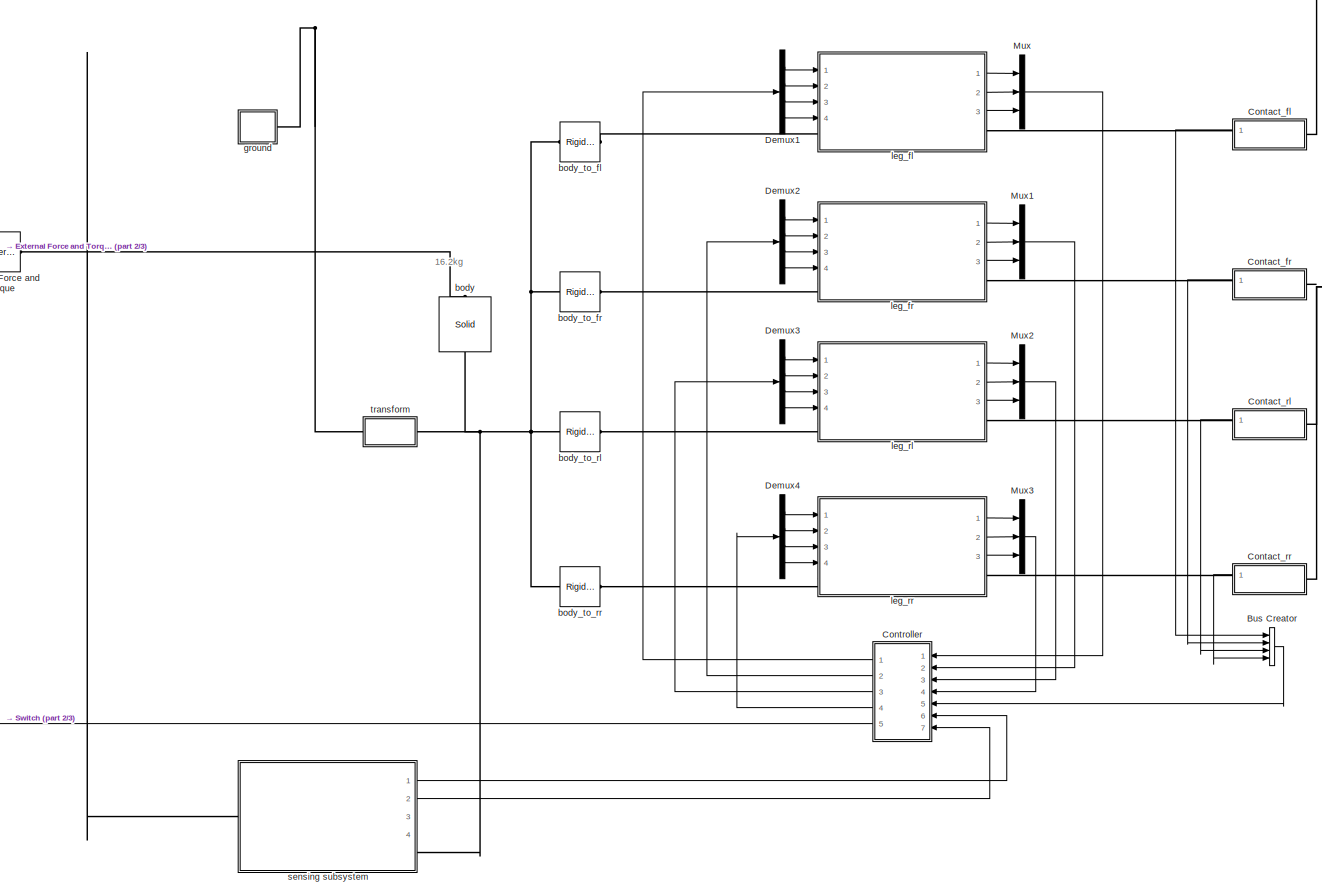
[diagram: root canvas - part 1/3, middle right region]
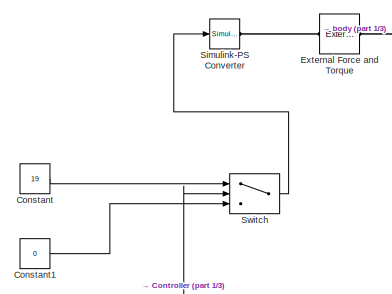
[diagram: root canvas - part 2/3, middle left region]
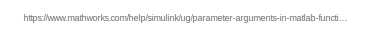
[diagram: root canvas - part 3/3, bottom right region]
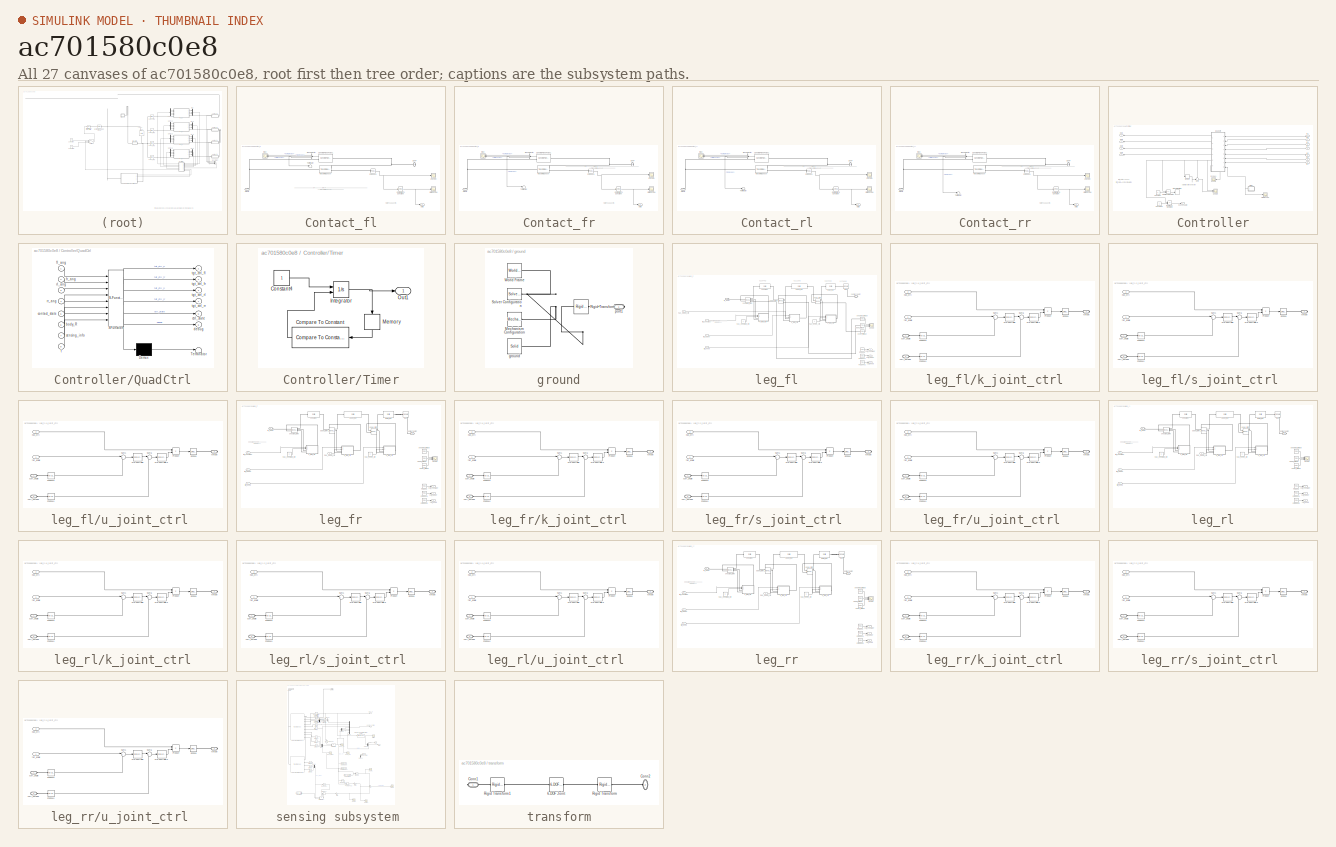
[diagram: thumbnail index - all 27 canvases of the model, root first then tree order]
MODEL slx_ac701580c0e8
KIND model
CONFIG AbsTol = auto
CONFIG EnableMultiTasking = off
CONFIG FixedStep = auto
CONFIG MaxStep = auto
CONFIG MinStep = auto
CONFIG RelTol = 1e-3
CONFIG SampleTimeConstraint = Unconstrained
CONFIG Solver = ode15s
CONFIG SolverName = ode15s
CONFIG StartTime = 0.0
CONFIG StopTime = 10.0
BLOCK [BusCreator] Bus Creator
  DisplayOption = bar
  InheritFromInputs = on
  Inputs = 4
  Ports = [4, 1]
BLOCK [Constant] Constant
  Value = 19
BLOCK [Constant] Constant1
  Value = 0
BLOCK [SubSystem] Contact_fl
  Ports = [0, 1, 0, 0, 0, 1, 1]
  RequestExecContextInheritance = off
BLOCK [BusSelector] Contact_fl/Bus Selector
  OutputAsBus = off
  OutputSignals = Normal Force,Frame Sep,Friction Force
  Ports = [1, 3]
BLOCK [Reference] Contact_fl/Compare To Constant  REF=simulink/Logic and Bit
Operations/Compare
To Constant
  Ports = [1, 1]
  SourceBlock = simulink/Logic and Bit\nOperations/Compare\nTo Constant
  SourceProductBaseCode = SL
  SourceProductName = Simulink
  SourceType = Compare To Constant
BLOCK [Reference] Contact_fl/PSConv4  REF=nesl_utility/PS-Simulink
Converter
  Ports = [0, 1, 0, 0, 0, 1]
  SourceBlock = nesl_utility/PS-Simulink\nConverter
  SourceProductBaseCode = SS
  SourceProductName = Simscape
  SourceType = PS-Simulink\nConverter
BLOCK [PMIOPort] Contact_fl/PlanB
  Side = Left
BLOCK [PMIOPort] Contact_fl/SphF
  Port = 2
  Side = Right
BLOCK [Reference] Contact_fl/Sphere to Plane Force1  REF=Contact_Forces_Lib/3D/Sphere to Plane Force
  Ports = [0, 1, 0, 0, 0, 1, 1]
  SourceBlock = Contact_Forces_Lib/3D/Sphere to Plane Force
  SourceProductName = SimMechanics Contact Forces Library
  SourceType = Sphere to Plane Force
BLOCK [Scope] Contact_fl/State Scope
  Floating = off
  NumInputPorts = 1
  Ports = [1]
  ScopeSpecificationString = Simulink.scopes.TimeScopeBlockCfg('CurrentConfiguration', extmgr.ConfigurationSet(extmgr.Configuration('Core','General UI',true),extmgr.Configuration('Core','Source UI',true),extmgr.Configuration('Sources','WiredSimulink',true,'DataLoggingVariableName','ScopeData2'),extmgr.Configuration('Visuals','Time Domain',true,'SerializedDisplays',{struct('MinYLimReal','-0.125','MaxYLimReal','1.125','YLabelRe...<+1738ch>
BLOCK [Terminator] Contact_fl/Terminator
BLOCK [Reference] Contact_fl/Transform Sensor  REF=sm_lib/Frames and
Transforms/Transform
Sensor
  Ports = [0, 0, 0, 0, 0, 1, 2]
  SourceBlock = sm_lib/Frames and\nTransforms/Transform\nSensor
  SourceProductBaseCode = MS
  SourceProductName = Simscape Multibody
  SourceType = Transform\nSensor
BLOCK [Scope] Contact_fl/ZScope
  Floating = off
  NumInputPorts = 1
  Ports = [1]
  ScopeSpecificationString = Simulink.scopes.TimeScopeBlockCfg('CurrentConfiguration', extmgr.ConfigurationSet(extmgr.Configuration('Core','General UI',true),extmgr.Configuration('Core','Source UI',true),extmgr.Configuration('Sources','WiredSimulink',true,'DataLoggingVariableName','ScopeData1'),extmgr.Configuration('Visuals','Time Domain',true,'SerializedDisplays',{struct('MinYLimReal','0.21142','MaxYLimReal','0.26619','YLabe...<+1738ch>
BLOCK [Scope] Contact_fl/force
  Floating = off
  NumInputPorts = 2
  Ports = [2]
  ScopeSpecificationString = Simulink.scopes.TimeScopeBlockCfg('CurrentConfiguration', extmgr.ConfigurationSet(extmgr.Configuration('Core','General UI',true),extmgr.Configuration('Core','Source UI',true),extmgr.Configuration('Sources','WiredSimulink',true),extmgr.Configuration('Visuals','Time Domain',true,'SerializedDisplays',{struct('MinYLimReal','-483.20806','MaxYLimReal','1131.7449','YLabelReal','','MinYLimMag',' 0.00000',...<+2099ch>
BLOCK [Outport] Contact_fl/state
  IconDisplay = Port number
BLOCK [SubSystem] Contact_fr
  Ports = [0, 1, 0, 0, 0, 1, 1]
  RequestExecContextInheritance = off
BLOCK [BusSelector] Contact_fr/Bus Selector
  OutputAsBus = off
  OutputSignals = Normal Force,Frame Sep,Friction Force
  Ports = [1, 3]
BLOCK [Reference] Contact_fr/Compare To Constant  REF=simulink/Logic and Bit
Operations/Compare
To Constant
  Ports = [1, 1]
  SourceBlock = simulink/Logic and Bit\nOperations/Compare\nTo Constant
  SourceProductBaseCode = SL
  SourceProductName = Simulink
  SourceType = Compare To Constant
BLOCK [Reference] Contact_fr/PSConv4  REF=nesl_utility/PS-Simulink
Converter
  Ports = [0, 1, 0, 0, 0, 1]
  SourceBlock = nesl_utility/PS-Simulink\nConverter
  SourceProductBaseCode = SS
  SourceProductName = Simscape
  SourceType = PS-Simulink\nConverter
BLOCK [PMIOPort] Contact_fr/PlanB
  Side = Left
BLOCK [PMIOPort] Contact_fr/SphF
  Port = 2
  Side = Right
BLOCK [Reference] Contact_fr/Sphere to Plane Force1  REF=Contact_Forces_Lib/3D/Sphere to Plane Force
  Ports = [0, 1, 0, 0, 0, 1, 1]
  SourceBlock = Contact_Forces_Lib/3D/Sphere to Plane Force
  SourceProductName = SimMechanics Contact Forces Library
  SourceType = Sphere to Plane Force
BLOCK [Scope] Contact_fr/State Scope
  Floating = off
  NumInputPorts = 1
  Ports = [1]
  ScopeSpecificationString = Simulink.scopes.TimeScopeBlockCfg('CurrentConfiguration', extmgr.ConfigurationSet(extmgr.Configuration('Core','General UI',true),extmgr.Configuration('Core','Source UI',true),extmgr.Configuration('Sources','WiredSimulink',true,'DataLoggingVariableName','ScopeData2'),extmgr.Configuration('Visuals','Time Domain',true,'SerializedDisplays',{struct('MinYLimReal','3.40363','MaxYLimReal','4.10196','YLabe...<+1745ch>
BLOCK [Terminator] Contact_fr/Terminator
BLOCK [Reference] Contact_fr/Transform Sensor  REF=sm_lib/Frames and
Transforms/Transform
Sensor
  Ports = [0, 0, 0, 0, 0, 1, 2]
  SourceBlock = sm_lib/Frames and\nTransforms/Transform\nSensor
  SourceProductBaseCode = MS
  SourceProductName = Simscape Multibody
  SourceType = Transform\nSensor
BLOCK [Scope] Contact_fr/ZScope
  Floating = off
  NumInputPorts = 1
  Ports = [1]
  ScopeSpecificationString = Simulink.scopes.TimeScopeBlockCfg('CurrentConfiguration', extmgr.ConfigurationSet(extmgr.Configuration('Core','General UI',true),extmgr.Configuration('Core','Source UI',true),extmgr.Configuration('Sources','WiredSimulink',true,'DataLoggingVariableName','ScopeData1'),extmgr.Configuration('Visuals','Time Domain',true,'SerializedDisplays',{struct('MinYLimReal','-0.07993','MaxYLimReal','0.50888','YLab...<+1755ch>
BLOCK [Scope] Contact_fr/force
  Floating = off
  NumInputPorts = 2
  Ports = [2]
  ScopeSpecificationString = Simulink.scopes.TimeScopeBlockCfg('CurrentConfiguration', extmgr.ConfigurationSet(extmgr.Configuration('Core','General UI',true),extmgr.Configuration('Core','Source UI',true),extmgr.Configuration('Sources','WiredSimulink',true),extmgr.Configuration('Visuals','Time Domain',true,'SerializedDisplays',{struct('MinYLimReal','-1765.00642','MaxYLimReal','8517.50545','YLabelReal','','MinYLimMag','  0.0000...<+1825ch>
BLOCK [Outport] Contact_fr/state
  IconDisplay = Port number
BLOCK [SubSystem] Contact_rl
  Ports = [0, 1, 0, 0, 0, 1, 1]
  RequestExecContextInheritance = off
BLOCK [BusSelector] Contact_rl/Bus Selector
  OutputAsBus = off
  OutputSignals = Normal Force,Frame Sep,Friction Force
  Ports = [1, 3]
BLOCK [Reference] Contact_rl/Compare To Constant  REF=simulink/Logic and Bit
Operations/Compare
To Constant
  Ports = [1, 1]
  SourceBlock = simulink/Logic and Bit\nOperations/Compare\nTo Constant
  SourceProductBaseCode = SL
  SourceProductName = Simulink
  SourceType = Compare To Constant
BLOCK [Reference] Contact_rl/PSConv4  REF=nesl_utility/PS-Simulink
Converter
  Ports = [0, 1, 0, 0, 0, 1]
  SourceBlock = nesl_utility/PS-Simulink\nConverter
  SourceProductBaseCode = SS
  SourceProductName = Simscape
  SourceType = PS-Simulink\nConverter
BLOCK [PMIOPort] Contact_rl/PlanB
  Side = Left
BLOCK [PMIOPort] Contact_rl/SphF
  Port = 2
  Side = Right
BLOCK [Reference] Contact_rl/Sphere to Plane Force1  REF=Contact_Forces_Lib/3D/Sphere to Plane Force
  Ports = [0, 1, 0, 0, 0, 1, 1]
  SourceBlock = Contact_Forces_Lib/3D/Sphere to Plane Force
  SourceProductName = SimMechanics Contact Forces Library
  SourceType = Sphere to Plane Force
BLOCK [Scope] Contact_rl/State Scope
  Floating = off
  NumInputPorts = 1
  Ports = [1]
  ScopeSpecificationString = Simulink.scopes.TimeScopeBlockCfg('CurrentConfiguration', extmgr.ConfigurationSet(extmgr.Configuration('Core','General UI',true),extmgr.Configuration('Core','Source UI',true),extmgr.Configuration('Sources','WiredSimulink',true,'DataLoggingVariableName','ScopeData2'),extmgr.Configuration('Visuals','Time Domain',true,'SerializedDisplays',{struct('MinYLimReal','-0.125','MaxYLimReal','1.125','YLabelRe...<+1739ch>
BLOCK [Terminator] Contact_rl/Terminator
BLOCK [Reference] Contact_rl/Transform Sensor  REF=sm_lib/Frames and
Transforms/Transform
Sensor
  Ports = [0, 0, 0, 0, 0, 1, 2]
  SourceBlock = sm_lib/Frames and\nTransforms/Transform\nSensor
  SourceProductBaseCode = MS
  SourceProductName = Simscape Multibody
  SourceType = Transform\nSensor
BLOCK [Scope] Contact_rl/ZScope
  Floating = off
  NumInputPorts = 1
  Ports = [1]
  ScopeSpecificationString = Simulink.scopes.TimeScopeBlockCfg('CurrentConfiguration', extmgr.ConfigurationSet(extmgr.Configuration('Core','General UI',true),extmgr.Configuration('Core','Source UI',true),extmgr.Configuration('Sources','WiredSimulink',true,'DataLoggingVariableName','ScopeData1'),extmgr.Configuration('Visuals','Time Domain',true,'SerializedDisplays',{struct('MinYLimReal','0.2216','MaxYLimReal','0.24665','YLabel...<+1762ch>
BLOCK [Scope] Contact_rl/force
  Floating = off
  NumInputPorts = 2
  Ports = [2]
  ScopeSpecificationString = Simulink.scopes.TimeScopeBlockCfg('CurrentConfiguration', extmgr.ConfigurationSet(extmgr.Configuration('Core','General UI',true),extmgr.Configuration('Core','Source UI',true),extmgr.Configuration('Sources','WiredSimulink',true),extmgr.Configuration('Visuals','Time Domain',true,'SerializedDisplays',{struct('MinYLimReal','-385.95585','MaxYLimReal','1796.51268','YLabelReal','','MinYLimMag',' 0.00000'...<+1838ch>
BLOCK [Outport] Contact_rl/state
  IconDisplay = Port number
BLOCK [SubSystem] Contact_rr
  Ports = [0, 1, 0, 0, 0, 1, 1]
  RequestExecContextInheritance = off
BLOCK [BusSelector] Contact_rr/Bus Selector
  OutputAsBus = off
  OutputSignals = Normal Force,Frame Sep,Friction Force
  Ports = [1, 3]
BLOCK [Reference] Contact_rr/Compare To Constant  REF=simulink/Logic and Bit
Operations/Compare
To Constant
  Ports = [1, 1]
  SourceBlock = simulink/Logic and Bit\nOperations/Compare\nTo Constant
  SourceProductBaseCode = SL
  SourceProductName = Simulink
  SourceType = Compare To Constant
BLOCK [Reference] Contact_rr/PSConv4  REF=nesl_utility/PS-Simulink
Converter
  Ports = [0, 1, 0, 0, 0, 1]
  SourceBlock = nesl_utility/PS-Simulink\nConverter
  SourceProductBaseCode = SS
  SourceProductName = Simscape
  SourceType = PS-Simulink\nConverter
BLOCK [PMIOPort] Contact_rr/PlanB
  Side = Left
BLOCK [PMIOPort] Contact_rr/SphF
  Port = 2
  Side = Right
BLOCK [Reference] Contact_rr/Sphere to Plane Force1  REF=Contact_Forces_Lib/3D/Sphere to Plane Force
  Ports = [0, 1, 0, 0, 0, 1, 1]
  SourceBlock = Contact_Forces_Lib/3D/Sphere to Plane Force
  SourceProductName = SimMechanics Contact Forces Library
  SourceType = Sphere to Plane Force
BLOCK [Scope] Contact_rr/State Scope
  Floating = off
  NumInputPorts = 1
  Ports = [1]
  ScopeSpecificationString = Simulink.scopes.TimeScopeBlockCfg('CurrentConfiguration', extmgr.ConfigurationSet(extmgr.Configuration('Core','General UI',true),extmgr.Configuration('Core','Source UI',true),extmgr.Configuration('Sources','WiredSimulink',true,'DataLoggingVariableName','ScopeData2'),extmgr.Configuration('Visuals','Time Domain',true,'SerializedDisplays',{struct('MinYLimReal','-0.125','MaxYLimReal','1.125','YLabelRe...<+1739ch>
BLOCK [Terminator] Contact_rr/Terminator
BLOCK [Reference] Contact_rr/Transform Sensor  REF=sm_lib/Frames and
Transforms/Transform
Sensor
  Ports = [0, 0, 0, 0, 0, 1, 2]
  SourceBlock = sm_lib/Frames and\nTransforms/Transform\nSensor
  SourceProductBaseCode = MS
  SourceProductName = Simscape Multibody
  SourceType = Transform\nSensor
BLOCK [Scope] Contact_rr/ZScope
  Floating = off
  NumInputPorts = 1
  Ports = [1]
  ScopeSpecificationString = Simulink.scopes.TimeScopeBlockCfg('CurrentConfiguration', extmgr.ConfigurationSet(extmgr.Configuration('Core','General UI',true),extmgr.Configuration('Core','Source UI',true),extmgr.Configuration('Sources','WiredSimulink',true,'DataLoggingVariableName','ScopeData1'),extmgr.Configuration('Visuals','Time Domain',true,'SerializedDisplays',{struct('MinYLimReal','-0.07993','MaxYLimReal','0.50888','YLab...<+1439ch>
BLOCK [Scope] Contact_rr/force
  Floating = off
  NumInputPorts = 2
  Ports = [2]
  ScopeSpecificationString = Simulink.scopes.TimeScopeBlockCfg('CurrentConfiguration', extmgr.ConfigurationSet(extmgr.Configuration('Core','General UI',true),extmgr.Configuration('Core','Source UI',true),extmgr.Configuration('Sources','WiredSimulink',true),extmgr.Configuration('Visuals','Time Domain',true,'SerializedDisplays',{struct('MinYLimReal','-1765.00642','MaxYLimReal','8517.50545','YLabelReal','','MinYLimMag','  0.0000...<+1825ch>
BLOCK [Outport] Contact_rr/state
  IconDisplay = Port number
BLOCK [SubSystem] Controller
  Ports = [7, 5]
  RequestExecContextInheritance = off
BLOCK [Constant] Controller/Constant
  Value = 4
BLOCK [Constant] Controller/Constant1
BLOCK [Inport] Controller/In1
  IconDisplay = Port number
BLOCK [Inport] Controller/In2
  IconDisplay = Port number
  Port = 2
BLOCK [Inport] Controller/In3
  IconDisplay = Port number
  Port = 3
BLOCK [Inport] Controller/In4
  IconDisplay = Port number
  Port = 4
BLOCK [Inport] Controller/In5
  IconDisplay = Port number
  Port = 5
BLOCK [Inport] Controller/In6
  IconDisplay = Port number
  Port = 6
BLOCK [Inport] Controller/In7
  IconDisplay = Port number
  Port = 7
BLOCK [Memory] Controller/Memory
BLOCK [Outport] Controller/Out1
  IconDisplay = Port number
BLOCK [Outport] Controller/Out2
  IconDisplay = Port number
  Port = 2
BLOCK [Outport] Controller/Out3
  IconDisplay = Port number
  Port = 3
BLOCK [Outport] Controller/Out4
  IconDisplay = Port number
  Port = 4
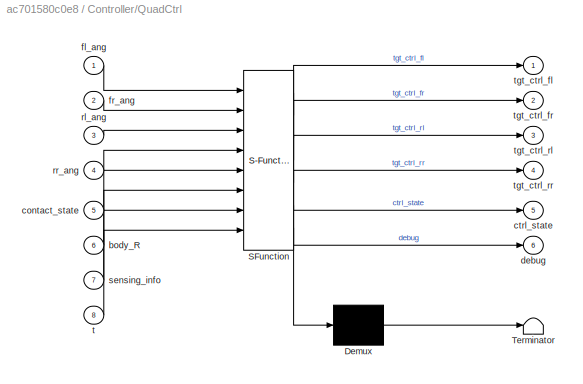
BLOCK [SubSystem] Controller/QuadCtrl
  ErrorFcn = Stateflow.Translate.translate
  PermitHierarchicalResolution = ExplicitOnly
  Ports = [8, 6]
  RequestExecContextInheritance = off
  SFBlockType = MATLAB Function
  SystemSampleTime = 0.0025
  TreatAsAtomicUnit = on
BLOCK [Demux] Controller/QuadCtrl/ Demux 
  Outputs = 1
  Ports = [1, 1]
BLOCK [S-Function] Controller/QuadCtrl/ SFunction 
  EnableBusSupport = on
  FunctionName = sf_sfun
  Parameters = body,planner
  PortCounts = [8 7]
  Ports = [8, 7]
  SFcnIsStateOwnerBlock = off
  SFunctionDeploymentMode = off
  Tag = Stateflow S-Function quad_new_leg_raibert_strategy_return_map 2
BLOCK [Terminator] Controller/QuadCtrl/ Terminator 
BLOCK [Inport] Controller/QuadCtrl/body_R
  IconDisplay = Port number
  Port = 6
BLOCK [Inport] Controller/QuadCtrl/contact_state
  IconDisplay = Port number
  Port = 5
BLOCK [Outport] Controller/QuadCtrl/ctrl_state
  IconDisplay = Port number
  Port = 5
BLOCK [Outport] Controller/QuadCtrl/debug
  IconDisplay = Port number
  Port = 6
BLOCK [Inport] Controller/QuadCtrl/fl_ang
  IconDisplay = Port number
BLOCK [Inport] Controller/QuadCtrl/fr_ang
  IconDisplay = Port number
  Port = 2
BLOCK [Inport] Controller/QuadCtrl/rl_ang
  IconDisplay = Port number
  Port = 3
BLOCK [Inport] Controller/QuadCtrl/rr_ang
  IconDisplay = Port number
  Port = 4
BLOCK [Inport] Controller/QuadCtrl/sensing_info
  IconDisplay = Port number
  Port = 7
BLOCK [Inport] Controller/QuadCtrl/t
  IconDisplay = Port number
  Port = 8
BLOCK [Outport] Controller/QuadCtrl/tgt_ctrl_fl
  IconDisplay = Port number
BLOCK [Outport] Controller/QuadCtrl/tgt_ctrl_fr
  IconDisplay = Port number
  Port = 2
BLOCK [Outport] Controller/QuadCtrl/tgt_ctrl_rl
  IconDisplay = Port number
  Port = 3
BLOCK [Outport] Controller/QuadCtrl/tgt_ctrl_rr
  IconDisplay = Port number
  Port = 4
BLOCK [RelationalOperator] Controller/Relational Operator
  InputSameDT = off
  Operator = ==
  OutDataTypeStr = boolean
  Ports = [2, 1]
  RndMeth = Simplest
BLOCK [RelationalOperator] Controller/Relational Operator1
  InputSameDT = off
  Operator = ==
  OutDataTypeStr = boolean
  Ports = [2, 1]
  RndMeth = Simplest
BLOCK [Scope] Controller/Scope
  Floating = off
  NumInputPorts = 2
  Ports = [2]
  ScopeSpecificationString = Simulink.scopes.TimeScopeBlockCfg('CurrentConfiguration', extmgr.ConfigurationSet(extmgr.Configuration('Core','General UI',true),extmgr.Configuration('Core','Source UI',true),extmgr.Configuration('Sources','WiredSimulink',true,'DataLoggingVariableName','ScopeData1'),extmgr.Configuration('Visuals','Time Domain',true,'SerializedDisplays',{struct('MinYLimReal','-0.25','MaxYLimReal','2.25','YLabelReal...<+1447ch>
BLOCK [Scope] Controller/Scope1
  Floating = off
  NumInputPorts = 1
  Ports = [1]
  ScopeSpecificationString = Simulink.scopes.TimeScopeBlockCfg('CurrentConfiguration', extmgr.ConfigurationSet(extmgr.Configuration('Core','General UI',true),extmgr.Configuration('Core','Source UI',true),extmgr.Configuration('Sources','WiredSimulink',true,'DataLoggingVariableName','ScopeData5'),extmgr.Configuration('Visuals','Time Domain',true,'SerializedDisplays',{struct('MinYLimReal','-37.5','MaxYLimReal','337.5','YLabelRea...<+1465ch>
BLOCK [Stop] Controller/Stop Simulation
BLOCK [Sum] Controller/Sum
  IconShape = round
  InputSameDT = off
  Inputs = +-
  OutDataTypeStr = Inherit: Inherit via internal rule
  Ports = [2, 1]
  SaturateOnIntegerOverflow = off
BLOCK [SubSystem] Controller/Timer
  Ports = [0, 1]
  RequestExecContextInheritance = off
BLOCK [Reference] Controller/Timer/Compare To Constant  REF=simulink/Logic and Bit
Operations/Compare
To Constant
  Ports = [1, 1]
  SourceBlock = simulink/Logic and Bit\nOperations/Compare\nTo Constant
  SourceProductBaseCode = SL
  SourceProductName = Simulink
  SourceType = Compare To Constant
BLOCK [Constant] Controller/Timer/Constant4
BLOCK [Integrator] Controller/Timer/Integrator
  ExternalReset = level
  Ports = [2, 1]
BLOCK [Memory] Controller/Timer/Memory
BLOCK [Outport] Controller/Timer/Out1
  IconDisplay = Port number
BLOCK [Scope] Controller/TimerScope
  Floating = off
  NumInputPorts = 1
  Ports = [1]
  ScopeSpecificationString = Simulink.scopes.TimeScopeBlockCfg('CurrentConfiguration', extmgr.ConfigurationSet(extmgr.Configuration('Core','General UI',true),extmgr.Configuration('Core','Source UI',true),extmgr.Configuration('Sources','WiredSimulink',true,'DataLoggingVariableName','ScopeData1'),extmgr.Configuration('Visuals','Time Domain',true,'SerializedDisplays',{struct('MinYLimReal','-0.25011','MaxYLimReal','2.25096','YLab...<+1443ch>
BLOCK [Outport] Controller/push enable 
  IconDisplay = Port number
  Port = 5
BLOCK [Demux] Demux1
  DisplayOption = bar
  Ports = [1, 4]
BLOCK [Demux] Demux2
  DisplayOption = bar
  Ports = [1, 4]
BLOCK [Demux] Demux3
  DisplayOption = bar
  Ports = [1, 4]
BLOCK [Demux] Demux4
  DisplayOption = bar
  Ports = [1, 4]
BLOCK [Reference] External Force and Torque  REF=sm_lib/Forces and
Torques/External Force
and Torque
  Ports = [0, 0, 0, 0, 0, 1, 1]
  SourceBlock = sm_lib/Forces and\nTorques/External Force\nand Torque
  SourceProductBaseCode = MS
  SourceProductName = Simscape Multibody
  SourceType = External Force\nand Torque
BLOCK [Mux] Mux
  DisplayOption = bar
  Inputs = 3
  Ports = [3, 1]
BLOCK [Mux] Mux1
  DisplayOption = bar
  Inputs = 3
  Ports = [3, 1]
BLOCK [Mux] Mux2
  DisplayOption = bar
  Inputs = 3
  Ports = [3, 1]
BLOCK [Mux] Mux3
  DisplayOption = bar
  Inputs = 3
  Ports = [3, 1]
BLOCK [Reference] Simulink-PS Converter  REF=nesl_utility/Simulink-PS
Converter
  Ports = [1, 0, 0, 0, 0, 0, 1]
  SourceBlock = nesl_utility/Simulink-PS\nConverter
  SourceProductBaseCode = SS
  SourceProductName = Simscape
  SourceType = Simulink-PS\nConverter
BLOCK [Switch] Switch
  Criteria = u2 > Threshold
  InputSameDT = off
  SaturateOnIntegerOverflow = off
BLOCK [Reference] body  REF=sm_lib/Body Elements/Solid
  Ports = [0, 0, 0, 0, 0, 1, 1]
  SourceBlock = sm_lib/Body Elements/Solid
  SourceProductBaseCode = MS
  SourceProductName = Simscape Multibody
  SourceType = Solid
BLOCK [Reference] body_to_fl  REF=sm_lib/Frames and
Transforms/Rigid
Transform
  Ports = [0, 0, 0, 0, 0, 1, 1]
  SourceBlock = sm_lib/Frames and\nTransforms/Rigid\nTransform
  SourceProductBaseCode = MS
  SourceProductName = Simscape Multibody
  SourceType = Rigid\nTransform
BLOCK [Reference] body_to_fr  REF=sm_lib/Frames and
Transforms/Rigid
Transform
  Ports = [0, 0, 0, 0, 0, 1, 1]
  SourceBlock = sm_lib/Frames and\nTransforms/Rigid\nTransform
  SourceProductBaseCode = MS
  SourceProductName = Simscape Multibody
  SourceType = Rigid\nTransform
BLOCK [Reference] body_to_rl  REF=sm_lib/Frames and
Transforms/Rigid
Transform
  Ports = [0, 0, 0, 0, 0, 1, 1]
  SourceBlock = sm_lib/Frames and\nTransforms/Rigid\nTransform
  SourceProductBaseCode = MS
  SourceProductName = Simscape Multibody
  SourceType = Rigid\nTransform
BLOCK [Reference] body_to_rr  REF=sm_lib/Frames and
Transforms/Rigid
Transform
  Ports = [0, 0, 0, 0, 0, 1, 1]
  SourceBlock = sm_lib/Frames and\nTransforms/Rigid\nTransform
  SourceProductBaseCode = MS
  SourceProductName = Simscape Multibody
  SourceType = Rigid\nTransform
BLOCK [SubSystem] ground
  Ports = [0, 0, 0, 0, 0, 0, 1]
  RequestExecContextInheritance = off
BLOCK [Reference] ground/Mechanism Configuration  REF=sm_lib/Utilities/Mechanism
Configuration
  Ports = [0, 0, 0, 0, 0, 0, 1]
  SourceBlock = sm_lib/Utilities/Mechanism\nConfiguration
  SourceProductBaseCode = MS
  SourceProductName = Simscape Multibody
  SourceType = Mechanism\nConfiguration
BLOCK [Reference] ground/Rigid Transform  REF=sm_lib/Frames and
Transforms/Rigid
Transform
  Ports = [0, 0, 0, 0, 0, 1, 1]
  SourceBlock = sm_lib/Frames and\nTransforms/Rigid\nTransform
  SourceProductBaseCode = MS
  SourceProductName = Simscape Multibody
  SourceType = Rigid\nTransform
BLOCK [Reference] ground/Solver Configuration  REF=nesl_utility/Solver
Configuration
  Ports = [0, 0, 0, 0, 0, 0, 1]
  SourceBlock = nesl_utility/Solver\nConfiguration
  SourceProductBaseCode = SS
  SourceProductName = Simscape
  SourceType = Solver\nConfiguration
BLOCK [Reference] ground/World Frame  REF=sm_lib/Frames and
Transforms/World Frame
  Ports = [0, 0, 0, 0, 0, 0, 1]
  SourceBlock = sm_lib/Frames and\nTransforms/World Frame
  SourceProductBaseCode = MS
  SourceProductName = Simscape Multibody
  SourceType = World Frame
BLOCK [Reference] ground/ground  REF=sm_lib/Body Elements/Solid
  Ports = [0, 0, 0, 0, 0, 0, 1]
  SourceBlock = sm_lib/Body Elements/Solid
  SourceProductBaseCode = MS
  SourceProductName = Simscape Multibody
  SourceType = Solid
BLOCK [PMIOPort] ground/port1
  Side = Right
BLOCK [SubSystem] leg_fl
  Ports = [4, 3, 0, 0, 0, 1, 1]
  RequestExecContextInheritance = off
BLOCK [Reference] leg_fl/Ball  REF=Parts_Lib/Sphere
  Ports = [0, 0, 0, 0, 0, 1]
  SourceBlock = Parts_Lib/Sphere
  SourceType = Sphere with Markings
  Tag = CustomStyle
BLOCK [Reference] leg_fl/PSConv  REF=nesl_utility/PS-Simulink
Converter
  Commented = on
  Ports = [0, 1, 0, 0, 0, 1]
  SourceBlock = nesl_utility/PS-Simulink\nConverter
  SourceProductBaseCode = SS
  SourceProductName = Simscape
  SourceType = PS-Simulink\nConverter
BLOCK [Reference] leg_fl/PSConv1  REF=nesl_utility/PS-Simulink
Converter
  Commented = on
  Ports = [0, 1, 0, 0, 0, 1]
  SourceBlock = nesl_utility/PS-Simulink\nConverter
  SourceProductBaseCode = SS
  SourceProductName = Simscape
  SourceType = PS-Simulink\nConverter
BLOCK [Reference] leg_fl/PSConv2  REF=nesl_utility/PS-Simulink
Converter
  Commented = on
  Ports = [0, 1, 0, 0, 0, 1]
  SourceBlock = nesl_utility/PS-Simulink\nConverter
  SourceProductBaseCode = SS
  SourceProductName = Simscape
  SourceType = PS-Simulink\nConverter
BLOCK [Scope] leg_fl/Scope
  Floating = off
  NumInputPorts = 3
  Ports = [3]
  ScopeSpecificationString = Simulink.scopes.TimeScopeBlockCfg('CurrentConfiguration', extmgr.ConfigurationSet(extmgr.Configuration('Core','General UI',true),extmgr.Configuration('Core','Source UI',true),extmgr.Configuration('Sources','WiredSimulink',true,'DataLoggingVariableName','ScopeData2'),extmgr.Configuration('Visuals','Time Domain',true,'SerializedDisplays',{struct('MinYLimReal','-39.80861','MaxYLimReal','14.08135','YL...<+1506ch>
BLOCK [PMIOPort] leg_fl/contact_point
  Port = 2
  Side = Right
BLOCK [Outport] leg_fl/curr_knee
  IconDisplay = Port number
  Port = 3
BLOCK [Outport] leg_fl/curr_shoulder
  IconDisplay = Port number
BLOCK [Outport] leg_fl/curr_upper 
  IconDisplay = Port number
  Port = 2
BLOCK [Constant] leg_fl/has_knee_ctrl 
BLOCK [Constant] leg_fl/has_shoulder_ctrl
BLOCK [Inport] leg_fl/has_upper_ctrl
  IconDisplay = Port number
  Port = 4
BLOCK [SubSystem] leg_fl/k_joint_ctrl
  Ports = [2, 0, 0, 0, 0, 2, 1]
  RequestExecContextInheritance = off
BLOCK [Reference] leg_fl/k_joint_ctrl/PID Controller  REF=simulink/Continuous/PID Controller
  Ports = [1, 1]
  SourceBlock = simulink/Continuous/PID Controller
  SourceProductBaseCode = SL
  SourceProductName = Simulink
  SourceType = PID 1dof
BLOCK [Reference] leg_fl/k_joint_ctrl/PID Controller3  REF=simulink/Continuous/PID Controller
  Ports = [1, 1]
  SourceBlock = simulink/Continuous/PID Controller
  SourceProductBaseCode = SL
  SourceProductName = Simulink
  SourceType = PID 1dof
BLOCK [Reference] leg_fl/k_joint_ctrl/PSConv3  REF=nesl_utility/PS-Simulink
Converter
  Ports = [0, 1, 0, 0, 0, 1]
  SourceBlock = nesl_utility/PS-Simulink\nConverter
  SourceProductBaseCode = SS
  SourceProductName = Simscape
  SourceType = PS-Simulink\nConverter
BLOCK [Reference] leg_fl/k_joint_ctrl/PSConv4  REF=nesl_utility/PS-Simulink
Converter
  Ports = [0, 1, 0, 0, 0, 1]
  SourceBlock = nesl_utility/PS-Simulink\nConverter
  SourceProductBaseCode = SS
  SourceProductName = Simscape
  SourceType = PS-Simulink\nConverter
BLOCK [Product] leg_fl/k_joint_ctrl/Product
  InputSameDT = off
  OutDataTypeStr = Inherit: Inherit via internal rule
  Ports = [2, 1]
  RndMeth = Floor
  SaturateOnIntegerOverflow = off
BLOCK [Reference] leg_fl/k_joint_ctrl/SPConv  REF=nesl_utility/Simulink-PS
Converter
  Ports = [1, 0, 0, 0, 0, 0, 1]
  SourceBlock = nesl_utility/Simulink-PS\nConverter
  SourceProductBaseCode = SS
  SourceProductName = Simscape
  SourceType = Simulink-PS\nConverter
BLOCK [Sum] leg_fl/k_joint_ctrl/Sum1
  IconShape = round
  InputSameDT = off
  Inputs = |+-
  OutDataTypeStr = Inherit: Inherit via internal rule
  Ports = [2, 1]
  SaturateOnIntegerOverflow = off
BLOCK [Sum] leg_fl/k_joint_ctrl/Sum6
  IconShape = round
  InputSameDT = off
  Inputs = |+-
  OutDataTypeStr = Inherit: Inherit via internal rule
  Ports = [2, 1]
  SaturateOnIntegerOverflow = off
BLOCK [PMIOPort] leg_fl/k_joint_ctrl/curr_angle
  Side = Left
BLOCK [PMIOPort] leg_fl/k_joint_ctrl/curr_omega
  Port = 2
  Side = Left
BLOCK [Inport] leg_fl/k_joint_ctrl/has_ctrl
  IconDisplay = Port number
  Port = 2
BLOCK [Inport] leg_fl/k_joint_ctrl/tgt_angle
  IconDisplay = Port number
BLOCK [PMIOPort] leg_fl/k_joint_ctrl/torque
  Port = 3
  Side = Right
BLOCK [Reference] leg_fl/knee_joint  REF=sm_lib/Joints/Revolute Joint
  Ports = [0, 0, 0, 0, 0, 2, 4]
  SourceBlock = sm_lib/Joints/Revolute Joint
  SourceProductBaseCode = MS
  SourceProductName = Simscape Multibody
  SourceType = Revolute Joint
BLOCK [Reference] leg_fl/knee_torque  REF=nesl_utility/PS-Simulink
Converter
  Ports = [0, 1, 0, 0, 0, 1]
  SourceBlock = nesl_utility/PS-Simulink\nConverter
  SourceProductBaseCode = SS
  SourceProductName = Simscape
  SourceType = PS-Simulink\nConverter
BLOCK [Reference] leg_fl/lower_leg  REF=sm_lib/Body Elements/Solid
  Ports = [0, 0, 0, 0, 0, 1, 1]
  SourceBlock = sm_lib/Body Elements/Solid
  SourceProductBaseCode = MS
  SourceProductName = Simscape Multibody
  SourceType = Solid
BLOCK [SubSystem] leg_fl/s_joint_ctrl 
  Ports = [2, 0, 0, 0, 0, 2, 1]
  RequestExecContextInheritance = off
BLOCK [Reference] leg_fl/s_joint_ctrl /PID Controller  REF=simulink/Continuous/PID Controller
  Ports = [1, 1]
  SourceBlock = simulink/Continuous/PID Controller
  SourceProductBaseCode = SL
  SourceProductName = Simulink
  SourceType = PID 1dof
BLOCK [Reference] leg_fl/s_joint_ctrl /PID Controller3  REF=simulink/Continuous/PID Controller
  Ports = [1, 1]
  SourceBlock = simulink/Continuous/PID Controller
  SourceProductBaseCode = SL
  SourceProductName = Simulink
  SourceType = PID 1dof
BLOCK [Reference] leg_fl/s_joint_ctrl /PSConv3  REF=nesl_utility/PS-Simulink
Converter
  Ports = [0, 1, 0, 0, 0, 1]
  SourceBlock = nesl_utility/PS-Simulink\nConverter
  SourceProductBaseCode = SS
  SourceProductName = Simscape
  SourceType = PS-Simulink\nConverter
BLOCK [Reference] leg_fl/s_joint_ctrl /PSConv4  REF=nesl_utility/PS-Simulink
Converter
  Ports = [0, 1, 0, 0, 0, 1]
  SourceBlock = nesl_utility/PS-Simulink\nConverter
  SourceProductBaseCode = SS
  SourceProductName = Simscape
  SourceType = PS-Simulink\nConverter
BLOCK [Product] leg_fl/s_joint_ctrl /Product
  InputSameDT = off
  OutDataTypeStr = Inherit: Inherit via internal rule
  Ports = [2, 1]
  RndMeth = Floor
  SaturateOnIntegerOverflow = off
BLOCK [Reference] leg_fl/s_joint_ctrl /SPConv  REF=nesl_utility/Simulink-PS
Converter
  Ports = [1, 0, 0, 0, 0, 0, 1]
  SourceBlock = nesl_utility/Simulink-PS\nConverter
  SourceProductBaseCode = SS
  SourceProductName = Simscape
  SourceType = Simulink-PS\nConverter
BLOCK [Sum] leg_fl/s_joint_ctrl /Sum1
  IconShape = round
  InputSameDT = off
  Inputs = |+-
  OutDataTypeStr = Inherit: Inherit via internal rule
  Ports = [2, 1]
  SaturateOnIntegerOverflow = off
BLOCK [Sum] leg_fl/s_joint_ctrl /Sum6
  IconShape = round
  InputSameDT = off
  Inputs = |+-
  OutDataTypeStr = Inherit: Inherit via internal rule
  Ports = [2, 1]
  SaturateOnIntegerOverflow = off
BLOCK [PMIOPort] leg_fl/s_joint_ctrl /curr_angle
  Side = Left
BLOCK [PMIOPort] leg_fl/s_joint_ctrl /curr_omega
  Port = 2
  Side = Left
BLOCK [Inport] leg_fl/s_joint_ctrl /has_ctrl
  IconDisplay = Port number
  Port = 2
BLOCK [Inport] leg_fl/s_joint_ctrl /tgt_angle
  IconDisplay = Port number
BLOCK [PMIOPort] leg_fl/s_joint_ctrl /torque
  Port = 3
  Side = Right
BLOCK [Reference] leg_fl/shoulder  REF=sm_lib/Body Elements/Solid
  Ports = [0, 0, 0, 0, 0, 1, 1]
  SourceBlock = sm_lib/Body Elements/Solid
  SourceProductBaseCode = MS
  SourceProductName = Simscape Multibody
  SourceType = Solid
BLOCK [Reference] leg_fl/shoulder_joint  REF=sm_lib/Joints/Revolute Joint
  Ports = [0, 0, 0, 0, 0, 2, 4]
  SourceBlock = sm_lib/Joints/Revolute Joint
  SourceProductBaseCode = MS
  SourceProductName = Simscape Multibody
  SourceType = Revolute Joint
BLOCK [Reference] leg_fl/shoulder_torque  REF=nesl_utility/PS-Simulink
Converter
  Ports = [0, 1, 0, 0, 0, 1]
  SourceBlock = nesl_utility/PS-Simulink\nConverter
  SourceProductBaseCode = SS
  SourceProductName = Simscape
  SourceType = PS-Simulink\nConverter
BLOCK [Inport] leg_fl/tgt_knee
  IconDisplay = Port number
  Port = 3
BLOCK [Inport] leg_fl/tgt_shoulder
  IconDisplay = Port number
BLOCK [Inport] leg_fl/tgt_upper
  IconDisplay = Port number
  Port = 2
BLOCK [PMIOPort] leg_fl/to_body
  Side = Left
BLOCK [SubSystem] leg_fl/u_joint_ctrl 
  Ports = [2, 0, 0, 0, 0, 2, 1]
  RequestExecContextInheritance = off
BLOCK [Reference] leg_fl/u_joint_ctrl /PID Controller  REF=simulink/Continuous/PID Controller
  Ports = [1, 1]
  SourceBlock = simulink/Continuous/PID Controller
  SourceProductBaseCode = SL
  SourceProductName = Simulink
  SourceType = PID 1dof
BLOCK [Reference] leg_fl/u_joint_ctrl /PID Controller3  REF=simulink/Continuous/PID Controller
  Ports = [1, 1]
  SourceBlock = simulink/Continuous/PID Controller
  SourceProductBaseCode = SL
  SourceProductName = Simulink
  SourceType = PID 1dof
BLOCK [Reference] leg_fl/u_joint_ctrl /PSConv3  REF=nesl_utility/PS-Simulink
Converter
  Ports = [0, 1, 0, 0, 0, 1]
  SourceBlock = nesl_utility/PS-Simulink\nConverter
  SourceProductBaseCode = SS
  SourceProductName = Simscape
  SourceType = PS-Simulink\nConverter
BLOCK [Reference] leg_fl/u_joint_ctrl /PSConv4  REF=nesl_utility/PS-Simulink
Converter
  Ports = [0, 1, 0, 0, 0, 1]
  SourceBlock = nesl_utility/PS-Simulink\nConverter
  SourceProductBaseCode = SS
  SourceProductName = Simscape
  SourceType = PS-Simulink\nConverter
BLOCK [Product] leg_fl/u_joint_ctrl /Product
  InputSameDT = off
  OutDataTypeStr = Inherit: Inherit via internal rule
  Ports = [2, 1]
  RndMeth = Floor
  SaturateOnIntegerOverflow = off
BLOCK [Reference] leg_fl/u_joint_ctrl /SPConv  REF=nesl_utility/Simulink-PS
Converter
  Ports = [1, 0, 0, 0, 0, 0, 1]
  SourceBlock = nesl_utility/Simulink-PS\nConverter
  SourceProductBaseCode = SS
  SourceProductName = Simscape
  SourceType = Simulink-PS\nConverter
BLOCK [Sum] leg_fl/u_joint_ctrl /Sum1
  IconShape = round
  InputSameDT = off
  Inputs = |+-
  OutDataTypeStr = Inherit: Inherit via internal rule
  Ports = [2, 1]
  SaturateOnIntegerOverflow = off
BLOCK [Sum] leg_fl/u_joint_ctrl /Sum6
  IconShape = round
  InputSameDT = off
  Inputs = |+-
  OutDataTypeStr = Inherit: Inherit via internal rule
  Ports = [2, 1]
  SaturateOnIntegerOverflow = off
BLOCK [PMIOPort] leg_fl/u_joint_ctrl /curr_angle
  Side = Left
BLOCK [PMIOPort] leg_fl/u_joint_ctrl /curr_omega
  Port = 2
  Side = Left
BLOCK [Inport] leg_fl/u_joint_ctrl /has_ctrl
  IconDisplay = Port number
  Port = 2
BLOCK [Inport] leg_fl/u_joint_ctrl /tgt_angle
  IconDisplay = Port number
BLOCK [PMIOPort] leg_fl/u_joint_ctrl /torque
  Port = 3
  Side = Right
BLOCK [Reference] leg_fl/upper_joint  REF=sm_lib/Joints/Revolute Joint
  Ports = [0, 0, 0, 0, 0, 2, 4]
  SourceBlock = sm_lib/Joints/Revolute Joint
  SourceProductBaseCode = MS
  SourceProductName = Simscape Multibody
  SourceType = Revolute Joint
BLOCK [Reference] leg_fl/upper_leg  REF=sm_lib/Body Elements/Solid
  Ports = [0, 0, 0, 0, 0, 1, 1]
  SourceBlock = sm_lib/Body Elements/Solid
  SourceProductBaseCode = MS
  SourceProductName = Simscape Multibody
  SourceType = Solid
BLOCK [Reference] leg_fl/upper_torque  REF=nesl_utility/PS-Simulink
Converter
  Ports = [0, 1, 0, 0, 0, 1]
  SourceBlock = nesl_utility/PS-Simulink\nConverter
  SourceProductBaseCode = SS
  SourceProductName = Simscape
  SourceType = PS-Simulink\nConverter
BLOCK [SubSystem] leg_fr
  Ports = [4, 3, 0, 0, 0, 1, 1]
  RequestExecContextInheritance = off
BLOCK [Reference] leg_fr/Ball  REF=Parts_Lib/Sphere
  Ports = [0, 0, 0, 0, 0, 1]
  SourceBlock = Parts_Lib/Sphere
  SourceType = Sphere with Markings
  Tag = CustomStyle
BLOCK [Reference] leg_fr/PSConv  REF=nesl_utility/PS-Simulink
Converter
  Commented = on
  Ports = [0, 1, 0, 0, 0, 1]
  SourceBlock = nesl_utility/PS-Simulink\nConverter
  SourceProductBaseCode = SS
  SourceProductName = Simscape
  SourceType = PS-Simulink\nConverter
BLOCK [Reference] leg_fr/PSConv1  REF=nesl_utility/PS-Simulink
Converter
  Commented = on
  Ports = [0, 1, 0, 0, 0, 1]
  SourceBlock = nesl_utility/PS-Simulink\nConverter
  SourceProductBaseCode = SS
  SourceProductName = Simscape
  SourceType = PS-Simulink\nConverter
BLOCK [Reference] leg_fr/PSConv2  REF=nesl_utility/PS-Simulink
Converter
  Commented = on
  Ports = [0, 1, 0, 0, 0, 1]
  SourceBlock = nesl_utility/PS-Simulink\nConverter
  SourceProductBaseCode = SS
  SourceProductName = Simscape
  SourceType = PS-Simulink\nConverter
BLOCK [Scope] leg_fr/Scope
  Commented = on
  Floating = off
  NumInputPorts = 3
  Ports = [3]
  ScopeSpecificationString = Simulink.scopes.TimeScopeBlockCfg('CurrentConfiguration', extmgr.ConfigurationSet(extmgr.Configuration('Core','General UI',true),extmgr.Configuration('Core','Source UI',true),extmgr.Configuration('Sources','WiredSimulink',true,'DataLoggingVariableName','ScopeData2'),extmgr.Configuration('Visuals','Time Domain',true,'SerializedDisplays',{struct('MinYLimReal','-73.89619','MaxYLimReal','50.32102','YL...<+1480ch>  <repeated x3 — deduplicated; at blocks: Scope>
BLOCK [PMIOPort] leg_fr/contact_point
  Port = 2
  Side = Right
BLOCK [Outport] leg_fr/curr_knee
  IconDisplay = Port number
  Port = 3
BLOCK [Outport] leg_fr/curr_shoulder
  IconDisplay = Port number
BLOCK [Outport] leg_fr/curr_upper 
  IconDisplay = Port number
  Port = 2
BLOCK [Constant] leg_fr/has_knee_ctrl 
BLOCK [Constant] leg_fr/has_shoulder_ctrl
BLOCK [Inport] leg_fr/has_upper_ctrl
  IconDisplay = Port number
  Port = 4
BLOCK [SubSystem] leg_fr/k_joint_ctrl
  Ports = [2, 0, 0, 0, 0, 2, 1]
  RequestExecContextInheritance = off
BLOCK [Reference] leg_fr/k_joint_ctrl/PID Controller  REF=simulink/Continuous/PID Controller
  Ports = [1, 1]
  SourceBlock = simulink/Continuous/PID Controller
  SourceProductBaseCode = SL
  SourceProductName = Simulink
  SourceType = PID 1dof
BLOCK [Reference] leg_fr/k_joint_ctrl/PID Controller3  REF=simulink/Continuous/PID Controller
  Ports = [1, 1]
  SourceBlock = simulink/Continuous/PID Controller
  SourceProductBaseCode = SL
  SourceProductName = Simulink
  SourceType = PID 1dof
BLOCK [Reference] leg_fr/k_joint_ctrl/PSConv3  REF=nesl_utility/PS-Simulink
Converter
  Ports = [0, 1, 0, 0, 0, 1]
  SourceBlock = nesl_utility/PS-Simulink\nConverter
  SourceProductBaseCode = SS
  SourceProductName = Simscape
  SourceType = PS-Simulink\nConverter
BLOCK [Reference] leg_fr/k_joint_ctrl/PSConv4  REF=nesl_utility/PS-Simulink
Converter
  Ports = [0, 1, 0, 0, 0, 1]
  SourceBlock = nesl_utility/PS-Simulink\nConverter
  SourceProductBaseCode = SS
  SourceProductName = Simscape
  SourceType = PS-Simulink\nConverter
BLOCK [Product] leg_fr/k_joint_ctrl/Product
  InputSameDT = off
  OutDataTypeStr = Inherit: Inherit via internal rule
  Ports = [2, 1]
  RndMeth = Floor
  SaturateOnIntegerOverflow = off
BLOCK [Reference] leg_fr/k_joint_ctrl/SPConv  REF=nesl_utility/Simulink-PS
Converter
  Ports = [1, 0, 0, 0, 0, 0, 1]
  SourceBlock = nesl_utility/Simulink-PS\nConverter
  SourceProductBaseCode = SS
  SourceProductName = Simscape
  SourceType = Simulink-PS\nConverter
BLOCK [Sum] leg_fr/k_joint_ctrl/Sum1
  IconShape = round
  InputSameDT = off
  Inputs = |+-
  OutDataTypeStr = Inherit: Inherit via internal rule
  Ports = [2, 1]
  SaturateOnIntegerOverflow = off
BLOCK [Sum] leg_fr/k_joint_ctrl/Sum6
  IconShape = round
  InputSameDT = off
  Inputs = |+-
  OutDataTypeStr = Inherit: Inherit via internal rule
  Ports = [2, 1]
  SaturateOnIntegerOverflow = off
BLOCK [PMIOPort] leg_fr/k_joint_ctrl/curr_angle
  Side = Left
BLOCK [PMIOPort] leg_fr/k_joint_ctrl/curr_omega
  Port = 2
  Side = Left
BLOCK [Inport] leg_fr/k_joint_ctrl/has_ctrl
  IconDisplay = Port number
  Port = 2
BLOCK [Inport] leg_fr/k_joint_ctrl/tgt_angle
  IconDisplay = Port number
BLOCK [PMIOPort] leg_fr/k_joint_ctrl/torque
  Port = 3
  Side = Right
BLOCK [Reference] leg_fr/knee_joint  REF=sm_lib/Joints/Revolute Joint
  Ports = [0, 0, 0, 0, 0, 2, 4]
  SourceBlock = sm_lib/Joints/Revolute Joint
  SourceProductBaseCode = MS
  SourceProductName = Simscape Multibody
  SourceType = Revolute Joint
BLOCK [Reference] leg_fr/knee_torque  REF=nesl_utility/PS-Simulink
Converter
  Commented = on
  Ports = [0, 1, 0, 0, 0, 1]
  SourceBlock = nesl_utility/PS-Simulink\nConverter
  SourceProductBaseCode = SS
  SourceProductName = Simscape
  SourceType = PS-Simulink\nConverter
BLOCK [Reference] leg_fr/lower_leg  REF=sm_lib/Body Elements/Solid
  Ports = [0, 0, 0, 0, 0, 1, 1]
  SourceBlock = sm_lib/Body Elements/Solid
  SourceProductBaseCode = MS
  SourceProductName = Simscape Multibody
  SourceType = Solid
BLOCK [SubSystem] leg_fr/s_joint_ctrl 
  Ports = [2, 0, 0, 0, 0, 2, 1]
  RequestExecContextInheritance = off
BLOCK [Reference] leg_fr/s_joint_ctrl /PID Controller  REF=simulink/Continuous/PID Controller
  Ports = [1, 1]
  SourceBlock = simulink/Continuous/PID Controller
  SourceProductBaseCode = SL
  SourceProductName = Simulink
  SourceType = PID 1dof
BLOCK [Reference] leg_fr/s_joint_ctrl /PID Controller3  REF=simulink/Continuous/PID Controller
  Ports = [1, 1]
  SourceBlock = simulink/Continuous/PID Controller
  SourceProductBaseCode = SL
  SourceProductName = Simulink
  SourceType = PID 1dof
BLOCK [Reference] leg_fr/s_joint_ctrl /PSConv3  REF=nesl_utility/PS-Simulink
Converter
  Ports = [0, 1, 0, 0, 0, 1]
  SourceBlock = nesl_utility/PS-Simulink\nConverter
  SourceProductBaseCode = SS
  SourceProductName = Simscape
  SourceType = PS-Simulink\nConverter
BLOCK [Reference] leg_fr/s_joint_ctrl /PSConv4  REF=nesl_utility/PS-Simulink
Converter
  Ports = [0, 1, 0, 0, 0, 1]
  SourceBlock = nesl_utility/PS-Simulink\nConverter
  SourceProductBaseCode = SS
  SourceProductName = Simscape
  SourceType = PS-Simulink\nConverter
BLOCK [Product] leg_fr/s_joint_ctrl /Product
  InputSameDT = off
  OutDataTypeStr = Inherit: Inherit via internal rule
  Ports = [2, 1]
  RndMeth = Floor
  SaturateOnIntegerOverflow = off
BLOCK [Reference] leg_fr/s_joint_ctrl /SPConv  REF=nesl_utility/Simulink-PS
Converter
  Ports = [1, 0, 0, 0, 0, 0, 1]
  SourceBlock = nesl_utility/Simulink-PS\nConverter
  SourceProductBaseCode = SS
  SourceProductName = Simscape
  SourceType = Simulink-PS\nConverter
BLOCK [Sum] leg_fr/s_joint_ctrl /Sum1
  IconShape = round
  InputSameDT = off
  Inputs = |+-
  OutDataTypeStr = Inherit: Inherit via internal rule
  Ports = [2, 1]
  SaturateOnIntegerOverflow = off
BLOCK [Sum] leg_fr/s_joint_ctrl /Sum6
  IconShape = round
  InputSameDT = off
  Inputs = |+-
  OutDataTypeStr = Inherit: Inherit via internal rule
  Ports = [2, 1]
  SaturateOnIntegerOverflow = off
BLOCK [PMIOPort] leg_fr/s_joint_ctrl /curr_angle
  Side = Left
BLOCK [PMIOPort] leg_fr/s_joint_ctrl /curr_omega
  Port = 2
  Side = Left
BLOCK [Inport] leg_fr/s_joint_ctrl /has_ctrl
  IconDisplay = Port number
  Port = 2
BLOCK [Inport] leg_fr/s_joint_ctrl /tgt_angle
  IconDisplay = Port number
BLOCK [PMIOPort] leg_fr/s_joint_ctrl /torque
  Port = 3
  Side = Right
BLOCK [Reference] leg_fr/shoulder  REF=sm_lib/Body Elements/Solid
  Ports = [0, 0, 0, 0, 0, 1, 1]
  SourceBlock = sm_lib/Body Elements/Solid
  SourceProductBaseCode = MS
  SourceProductName = Simscape Multibody
  SourceType = Solid
BLOCK [Reference] leg_fr/shoulder_joint  REF=sm_lib/Joints/Revolute Joint
  Ports = [0, 0, 0, 0, 0, 2, 4]
  SourceBlock = sm_lib/Joints/Revolute Joint
  SourceProductBaseCode = MS
  SourceProductName = Simscape Multibody
  SourceType = Revolute Joint
BLOCK [Reference] leg_fr/shoulder_torque  REF=nesl_utility/PS-Simulink
Converter
  Commented = on
  Ports = [0, 1, 0, 0, 0, 1]
  SourceBlock = nesl_utility/PS-Simulink\nConverter
  SourceProductBaseCode = SS
  SourceProductName = Simscape
  SourceType = PS-Simulink\nConverter
BLOCK [Inport] leg_fr/tgt_knee
  IconDisplay = Port number
  Port = 3
BLOCK [Inport] leg_fr/tgt_shoulder
  IconDisplay = Port number
BLOCK [Inport] leg_fr/tgt_upper
  IconDisplay = Port number
  Port = 2
BLOCK [PMIOPort] leg_fr/to_body
  Side = Left
BLOCK [SubSystem] leg_fr/u_joint_ctrl 
  Ports = [2, 0, 0, 0, 0, 2, 1]
  RequestExecContextInheritance = off
BLOCK [Reference] leg_fr/u_joint_ctrl /PID Controller  REF=simulink/Continuous/PID Controller
  Ports = [1, 1]
  SourceBlock = simulink/Continuous/PID Controller
  SourceProductBaseCode = SL
  SourceProductName = Simulink
  SourceType = PID 1dof
BLOCK [Reference] leg_fr/u_joint_ctrl /PID Controller3  REF=simulink/Continuous/PID Controller
  Ports = [1, 1]
  SourceBlock = simulink/Continuous/PID Controller
  SourceProductBaseCode = SL
  SourceProductName = Simulink
  SourceType = PID 1dof
BLOCK [Reference] leg_fr/u_joint_ctrl /PSConv3  REF=nesl_utility/PS-Simulink
Converter
  Ports = [0, 1, 0, 0, 0, 1]
  SourceBlock = nesl_utility/PS-Simulink\nConverter
  SourceProductBaseCode = SS
  SourceProductName = Simscape
  SourceType = PS-Simulink\nConverter
BLOCK [Reference] leg_fr/u_joint_ctrl /PSConv4  REF=nesl_utility/PS-Simulink
Converter
  Ports = [0, 1, 0, 0, 0, 1]
  SourceBlock = nesl_utility/PS-Simulink\nConverter
  SourceProductBaseCode = SS
  SourceProductName = Simscape
  SourceType = PS-Simulink\nConverter
BLOCK [Product] leg_fr/u_joint_ctrl /Product
  InputSameDT = off
  OutDataTypeStr = Inherit: Inherit via internal rule
  Ports = [2, 1]
  RndMeth = Floor
  SaturateOnIntegerOverflow = off
BLOCK [Reference] leg_fr/u_joint_ctrl /SPConv  REF=nesl_utility/Simulink-PS
Converter
  Ports = [1, 0, 0, 0, 0, 0, 1]
  SourceBlock = nesl_utility/Simulink-PS\nConverter
  SourceProductBaseCode = SS
  SourceProductName = Simscape
  SourceType = Simulink-PS\nConverter
BLOCK [Sum] leg_fr/u_joint_ctrl /Sum1
  IconShape = round
  InputSameDT = off
  Inputs = |+-
  OutDataTypeStr = Inherit: Inherit via internal rule
  Ports = [2, 1]
  SaturateOnIntegerOverflow = off
BLOCK [Sum] leg_fr/u_joint_ctrl /Sum6
  IconShape = round
  InputSameDT = off
  Inputs = |+-
  OutDataTypeStr = Inherit: Inherit via internal rule
  Ports = [2, 1]
  SaturateOnIntegerOverflow = off
BLOCK [PMIOPort] leg_fr/u_joint_ctrl /curr_angle
  Side = Left
BLOCK [PMIOPort] leg_fr/u_joint_ctrl /curr_omega
  Port = 2
  Side = Left
BLOCK [Inport] leg_fr/u_joint_ctrl /has_ctrl
  IconDisplay = Port number
  Port = 2
BLOCK [Inport] leg_fr/u_joint_ctrl /tgt_angle
  IconDisplay = Port number
BLOCK [PMIOPort] leg_fr/u_joint_ctrl /torque
  Port = 3
  Side = Right
BLOCK [Reference] leg_fr/upper_joint  REF=sm_lib/Joints/Revolute Joint
  Ports = [0, 0, 0, 0, 0, 2, 4]
  SourceBlock = sm_lib/Joints/Revolute Joint
  SourceProductBaseCode = MS
  SourceProductName = Simscape Multibody
  SourceType = Revolute Joint
BLOCK [Reference] leg_fr/upper_leg  REF=sm_lib/Body Elements/Solid
  Ports = [0, 0, 0, 0, 0, 1, 1]
  SourceBlock = sm_lib/Body Elements/Solid
  SourceProductBaseCode = MS
  SourceProductName = Simscape Multibody
  SourceType = Solid
BLOCK [Reference] leg_fr/upper_torque  REF=nesl_utility/PS-Simulink
Converter
  Commented = on
  Ports = [0, 1, 0, 0, 0, 1]
  SourceBlock = nesl_utility/PS-Simulink\nConverter
  SourceProductBaseCode = SS
  SourceProductName = Simscape
  SourceType = PS-Simulink\nConverter
BLOCK [SubSystem] leg_rl
  Ports = [4, 3, 0, 0, 0, 1, 1]
  RequestExecContextInheritance = off
BLOCK [Reference] leg_rl/Ball  REF=Parts_Lib/Sphere
  Ports = [0, 0, 0, 0, 0, 1]
  SourceBlock = Parts_Lib/Sphere
  SourceType = Sphere with Markings
  Tag = CustomStyle
BLOCK [Reference] leg_rl/PSConv  REF=nesl_utility/PS-Simulink
Converter
  Commented = on
  Ports = [0, 1, 0, 0, 0, 1]
  SourceBlock = nesl_utility/PS-Simulink\nConverter
  SourceProductBaseCode = SS
  SourceProductName = Simscape
  SourceType = PS-Simulink\nConverter
BLOCK [Reference] leg_rl/PSConv1  REF=nesl_utility/PS-Simulink
Converter
  Commented = on
  Ports = [0, 1, 0, 0, 0, 1]
  SourceBlock = nesl_utility/PS-Simulink\nConverter
  SourceProductBaseCode = SS
  SourceProductName = Simscape
  SourceType = PS-Simulink\nConverter
BLOCK [Reference] leg_rl/PSConv2  REF=nesl_utility/PS-Simulink
Converter
  Commented = on
  Ports = [0, 1, 0, 0, 0, 1]
  SourceBlock = nesl_utility/PS-Simulink\nConverter
  SourceProductBaseCode = SS
  SourceProductName = Simscape
  SourceType = PS-Simulink\nConverter
BLOCK [Scope] leg_rl/Scope
  Commented = on
  Floating = off
  NumInputPorts = 3
  Ports = [3]
BLOCK [PMIOPort] leg_rl/contact_point
  Port = 2
  Side = Right
BLOCK [Outport] leg_rl/curr_knee
  IconDisplay = Port number
  Port = 3
BLOCK [Outport] leg_rl/curr_shoulder
  IconDisplay = Port number
BLOCK [Outport] leg_rl/curr_upper 
  IconDisplay = Port number
  Port = 2
BLOCK [Constant] leg_rl/has_knee_ctrl 
BLOCK [Constant] leg_rl/has_shoulder_ctrl
BLOCK [Inport] leg_rl/has_upper_ctrl
  IconDisplay = Port number
  Port = 4
BLOCK [SubSystem] leg_rl/k_joint_ctrl
  Ports = [2, 0, 0, 0, 0, 2, 1]
  RequestExecContextInheritance = off
BLOCK [Reference] leg_rl/k_joint_ctrl/PID Controller  REF=simulink/Continuous/PID Controller
  Ports = [1, 1]
  SourceBlock = simulink/Continuous/PID Controller
  SourceProductBaseCode = SL
  SourceProductName = Simulink
  SourceType = PID 1dof
BLOCK [Reference] leg_rl/k_joint_ctrl/PID Controller3  REF=simulink/Continuous/PID Controller
  Ports = [1, 1]
  SourceBlock = simulink/Continuous/PID Controller
  SourceProductBaseCode = SL
  SourceProductName = Simulink
  SourceType = PID 1dof
BLOCK [Reference] leg_rl/k_joint_ctrl/PSConv3  REF=nesl_utility/PS-Simulink
Converter
  Ports = [0, 1, 0, 0, 0, 1]
  SourceBlock = nesl_utility/PS-Simulink\nConverter
  SourceProductBaseCode = SS
  SourceProductName = Simscape
  SourceType = PS-Simulink\nConverter
BLOCK [Reference] leg_rl/k_joint_ctrl/PSConv4  REF=nesl_utility/PS-Simulink
Converter
  Ports = [0, 1, 0, 0, 0, 1]
  SourceBlock = nesl_utility/PS-Simulink\nConverter
  SourceProductBaseCode = SS
  SourceProductName = Simscape
  SourceType = PS-Simulink\nConverter
BLOCK [Product] leg_rl/k_joint_ctrl/Product
  InputSameDT = off
  OutDataTypeStr = Inherit: Inherit via internal rule
  Ports = [2, 1]
  RndMeth = Floor
  SaturateOnIntegerOverflow = off
BLOCK [Reference] leg_rl/k_joint_ctrl/SPConv  REF=nesl_utility/Simulink-PS
Converter
  Ports = [1, 0, 0, 0, 0, 0, 1]
  SourceBlock = nesl_utility/Simulink-PS\nConverter
  SourceProductBaseCode = SS
  SourceProductName = Simscape
  SourceType = Simulink-PS\nConverter
BLOCK [Sum] leg_rl/k_joint_ctrl/Sum1
  IconShape = round
  InputSameDT = off
  Inputs = |+-
  OutDataTypeStr = Inherit: Inherit via internal rule
  Ports = [2, 1]
  SaturateOnIntegerOverflow = off
BLOCK [Sum] leg_rl/k_joint_ctrl/Sum6
  IconShape = round
  InputSameDT = off
  Inputs = |+-
  OutDataTypeStr = Inherit: Inherit via internal rule
  Ports = [2, 1]
  SaturateOnIntegerOverflow = off
BLOCK [PMIOPort] leg_rl/k_joint_ctrl/curr_angle
  Side = Left
BLOCK [PMIOPort] leg_rl/k_joint_ctrl/curr_omega
  Port = 2
  Side = Left
BLOCK [Inport] leg_rl/k_joint_ctrl/has_ctrl
  IconDisplay = Port number
  Port = 2
BLOCK [Inport] leg_rl/k_joint_ctrl/tgt_angle
  IconDisplay = Port number
BLOCK [PMIOPort] leg_rl/k_joint_ctrl/torque
  Port = 3
  Side = Right
BLOCK [Reference] leg_rl/knee_joint  REF=sm_lib/Joints/Revolute Joint
  Ports = [0, 0, 0, 0, 0, 2, 4]
  SourceBlock = sm_lib/Joints/Revolute Joint
  SourceProductBaseCode = MS
  SourceProductName = Simscape Multibody
  SourceType = Revolute Joint
BLOCK [Reference] leg_rl/knee_torque  REF=nesl_utility/PS-Simulink
Converter
  Commented = on
  Ports = [0, 1, 0, 0, 0, 1]
  SourceBlock = nesl_utility/PS-Simulink\nConverter
  SourceProductBaseCode = SS
  SourceProductName = Simscape
  SourceType = PS-Simulink\nConverter
BLOCK [Reference] leg_rl/lower_leg  REF=sm_lib/Body Elements/Solid
  Ports = [0, 0, 0, 0, 0, 1, 1]
  SourceBlock = sm_lib/Body Elements/Solid
  SourceProductBaseCode = MS
  SourceProductName = Simscape Multibody
  SourceType = Solid
BLOCK [SubSystem] leg_rl/s_joint_ctrl 
  Ports = [2, 0, 0, 0, 0, 2, 1]
  RequestExecContextInheritance = off
BLOCK [Reference] leg_rl/s_joint_ctrl /PID Controller  REF=simulink/Continuous/PID Controller
  Ports = [1, 1]
  SourceBlock = simulink/Continuous/PID Controller
  SourceProductBaseCode = SL
  SourceProductName = Simulink
  SourceType = PID 1dof
BLOCK [Reference] leg_rl/s_joint_ctrl /PID Controller3  REF=simulink/Continuous/PID Controller
  Ports = [1, 1]
  SourceBlock = simulink/Continuous/PID Controller
  SourceProductBaseCode = SL
  SourceProductName = Simulink
  SourceType = PID 1dof
BLOCK [Reference] leg_rl/s_joint_ctrl /PSConv3  REF=nesl_utility/PS-Simulink
Converter
  Ports = [0, 1, 0, 0, 0, 1]
  SourceBlock = nesl_utility/PS-Simulink\nConverter
  SourceProductBaseCode = SS
  SourceProductName = Simscape
  SourceType = PS-Simulink\nConverter
BLOCK [Reference] leg_rl/s_joint_ctrl /PSConv4  REF=nesl_utility/PS-Simulink
Converter
  Ports = [0, 1, 0, 0, 0, 1]
  SourceBlock = nesl_utility/PS-Simulink\nConverter
  SourceProductBaseCode = SS
  SourceProductName = Simscape
  SourceType = PS-Simulink\nConverter
BLOCK [Product] leg_rl/s_joint_ctrl /Product
  InputSameDT = off
  OutDataTypeStr = Inherit: Inherit via internal rule
  Ports = [2, 1]
  RndMeth = Floor
  SaturateOnIntegerOverflow = off
BLOCK [Reference] leg_rl/s_joint_ctrl /SPConv  REF=nesl_utility/Simulink-PS
Converter
  Ports = [1, 0, 0, 0, 0, 0, 1]
  SourceBlock = nesl_utility/Simulink-PS\nConverter
  SourceProductBaseCode = SS
  SourceProductName = Simscape
  SourceType = Simulink-PS\nConverter
BLOCK [Sum] leg_rl/s_joint_ctrl /Sum1
  IconShape = round
  InputSameDT = off
  Inputs = |+-
  OutDataTypeStr = Inherit: Inherit via internal rule
  Ports = [2, 1]
  SaturateOnIntegerOverflow = off
BLOCK [Sum] leg_rl/s_joint_ctrl /Sum6
  IconShape = round
  InputSameDT = off
  Inputs = |+-
  OutDataTypeStr = Inherit: Inherit via internal rule
  Ports = [2, 1]
  SaturateOnIntegerOverflow = off
BLOCK [PMIOPort] leg_rl/s_joint_ctrl /curr_angle
  Side = Left
BLOCK [PMIOPort] leg_rl/s_joint_ctrl /curr_omega
  Port = 2
  Side = Left
BLOCK [Inport] leg_rl/s_joint_ctrl /has_ctrl
  IconDisplay = Port number
  Port = 2
BLOCK [Inport] leg_rl/s_joint_ctrl /tgt_angle
  IconDisplay = Port number
BLOCK [PMIOPort] leg_rl/s_joint_ctrl /torque
  Port = 3
  Side = Right
BLOCK [Reference] leg_rl/shoulder  REF=sm_lib/Body Elements/Solid
  Ports = [0, 0, 0, 0, 0, 1, 1]
  SourceBlock = sm_lib/Body Elements/Solid
  SourceProductBaseCode = MS
  SourceProductName = Simscape Multibody
  SourceType = Solid
BLOCK [Reference] leg_rl/shoulder_joint  REF=sm_lib/Joints/Revolute Joint
  Ports = [0, 0, 0, 0, 0, 2, 4]
  SourceBlock = sm_lib/Joints/Revolute Joint
  SourceProductBaseCode = MS
  SourceProductName = Simscape Multibody
  SourceType = Revolute Joint
BLOCK [Reference] leg_rl/shoulder_torque  REF=nesl_utility/PS-Simulink
Converter
  Commented = on
  Ports = [0, 1, 0, 0, 0, 1]
  SourceBlock = nesl_utility/PS-Simulink\nConverter
  SourceProductBaseCode = SS
  SourceProductName = Simscape
  SourceType = PS-Simulink\nConverter
BLOCK [Inport] leg_rl/tgt_knee
  IconDisplay = Port number
  Port = 3
BLOCK [Inport] leg_rl/tgt_shoulder
  IconDisplay = Port number
BLOCK [Inport] leg_rl/tgt_upper
  IconDisplay = Port number
  Port = 2
BLOCK [PMIOPort] leg_rl/to_body
  Side = Left
BLOCK [SubSystem] leg_rl/u_joint_ctrl 
  Ports = [2, 0, 0, 0, 0, 2, 1]
  RequestExecContextInheritance = off
BLOCK [Reference] leg_rl/u_joint_ctrl /PID Controller  REF=simulink/Continuous/PID Controller
  Ports = [1, 1]
  SourceBlock = simulink/Continuous/PID Controller
  SourceProductBaseCode = SL
  SourceProductName = Simulink
  SourceType = PID 1dof
BLOCK [Reference] leg_rl/u_joint_ctrl /PID Controller3  REF=simulink/Continuous/PID Controller
  Ports = [1, 1]
  SourceBlock = simulink/Continuous/PID Controller
  SourceProductBaseCode = SL
  SourceProductName = Simulink
  SourceType = PID 1dof
BLOCK [Reference] leg_rl/u_joint_ctrl /PSConv3  REF=nesl_utility/PS-Simulink
Converter
  Ports = [0, 1, 0, 0, 0, 1]
  SourceBlock = nesl_utility/PS-Simulink\nConverter
  SourceProductBaseCode = SS
  SourceProductName = Simscape
  SourceType = PS-Simulink\nConverter
BLOCK [Reference] leg_rl/u_joint_ctrl /PSConv4  REF=nesl_utility/PS-Simulink
Converter
  Ports = [0, 1, 0, 0, 0, 1]
  SourceBlock = nesl_utility/PS-Simulink\nConverter
  SourceProductBaseCode = SS
  SourceProductName = Simscape
  SourceType = PS-Simulink\nConverter
BLOCK [Product] leg_rl/u_joint_ctrl /Product
  InputSameDT = off
  OutDataTypeStr = Inherit: Inherit via internal rule
  Ports = [2, 1]
  RndMeth = Floor
  SaturateOnIntegerOverflow = off
BLOCK [Reference] leg_rl/u_joint_ctrl /SPConv  REF=nesl_utility/Simulink-PS
Converter
  Ports = [1, 0, 0, 0, 0, 0, 1]
  SourceBlock = nesl_utility/Simulink-PS\nConverter
  SourceProductBaseCode = SS
  SourceProductName = Simscape
  SourceType = Simulink-PS\nConverter
BLOCK [Sum] leg_rl/u_joint_ctrl /Sum1
  IconShape = round
  InputSameDT = off
  Inputs = |+-
  OutDataTypeStr = Inherit: Inherit via internal rule
  Ports = [2, 1]
  SaturateOnIntegerOverflow = off
BLOCK [Sum] leg_rl/u_joint_ctrl /Sum6
  IconShape = round
  InputSameDT = off
  Inputs = |+-
  OutDataTypeStr = Inherit: Inherit via internal rule
  Ports = [2, 1]
  SaturateOnIntegerOverflow = off
BLOCK [PMIOPort] leg_rl/u_joint_ctrl /curr_angle
  Side = Left
BLOCK [PMIOPort] leg_rl/u_joint_ctrl /curr_omega
  Port = 2
  Side = Left
BLOCK [Inport] leg_rl/u_joint_ctrl /has_ctrl
  IconDisplay = Port number
  Port = 2
BLOCK [Inport] leg_rl/u_joint_ctrl /tgt_angle
  IconDisplay = Port number
BLOCK [PMIOPort] leg_rl/u_joint_ctrl /torque
  Port = 3
  Side = Right
BLOCK [Reference] leg_rl/upper_joint  REF=sm_lib/Joints/Revolute Joint
  Ports = [0, 0, 0, 0, 0, 2, 4]
  SourceBlock = sm_lib/Joints/Revolute Joint
  SourceProductBaseCode = MS
  SourceProductName = Simscape Multibody
  SourceType = Revolute Joint
BLOCK [Reference] leg_rl/upper_leg  REF=sm_lib/Body Elements/Solid
  Ports = [0, 0, 0, 0, 0, 1, 1]
  SourceBlock = sm_lib/Body Elements/Solid
  SourceProductBaseCode = MS
  SourceProductName = Simscape Multibody
  SourceType = Solid
BLOCK [Reference] leg_rl/upper_torque  REF=nesl_utility/PS-Simulink
Converter
  Commented = on
  Ports = [0, 1, 0, 0, 0, 1]
  SourceBlock = nesl_utility/PS-Simulink\nConverter
  SourceProductBaseCode = SS
  SourceProductName = Simscape
  SourceType = PS-Simulink\nConverter
BLOCK [SubSystem] leg_rr
  Ports = [4, 3, 0, 0, 0, 1, 1]
  RequestExecContextInheritance = off
BLOCK [Reference] leg_rr/Ball  REF=Parts_Lib/Sphere
  Ports = [0, 0, 0, 0, 0, 1]
  SourceBlock = Parts_Lib/Sphere
  SourceType = Sphere with Markings
  Tag = CustomStyle
BLOCK [Reference] leg_rr/PSConv  REF=nesl_utility/PS-Simulink
Converter
  Commented = on
  Ports = [0, 1, 0, 0, 0, 1]
  SourceBlock = nesl_utility/PS-Simulink\nConverter
  SourceProductBaseCode = SS
  SourceProductName = Simscape
  SourceType = PS-Simulink\nConverter
BLOCK [Reference] leg_rr/PSConv1  REF=nesl_utility/PS-Simulink
Converter
  Commented = on
  Ports = [0, 1, 0, 0, 0, 1]
  SourceBlock = nesl_utility/PS-Simulink\nConverter
  SourceProductBaseCode = SS
  SourceProductName = Simscape
  SourceType = PS-Simulink\nConverter
BLOCK [Reference] leg_rr/PSConv2  REF=nesl_utility/PS-Simulink
Converter
  Commented = on
  Ports = [0, 1, 0, 0, 0, 1]
  SourceBlock = nesl_utility/PS-Simulink\nConverter
  SourceProductBaseCode = SS
  SourceProductName = Simscape
  SourceType = PS-Simulink\nConverter
BLOCK [Scope] leg_rr/Scope
  Commented = on
  Floating = off
  NumInputPorts = 3
  Ports = [3]
BLOCK [PMIOPort] leg_rr/contact_point
  Port = 2
  Side = Right
BLOCK [Outport] leg_rr/curr_knee
  IconDisplay = Port number
  Port = 3
BLOCK [Outport] leg_rr/curr_shoulder
  IconDisplay = Port number
BLOCK [Outport] leg_rr/curr_upper 
  IconDisplay = Port number
  Port = 2
BLOCK [Constant] leg_rr/has_knee_ctrl 
BLOCK [Constant] leg_rr/has_shoulder_ctrl
BLOCK [Inport] leg_rr/has_upper_ctrl
  IconDisplay = Port number
  Port = 4
BLOCK [SubSystem] leg_rr/k_joint_ctrl
  Ports = [2, 0, 0, 0, 0, 2, 1]
  RequestExecContextInheritance = off
BLOCK [Reference] leg_rr/k_joint_ctrl/PID Controller  REF=simulink/Continuous/PID Controller
  Ports = [1, 1]
  SourceBlock = simulink/Continuous/PID Controller
  SourceProductBaseCode = SL
  SourceProductName = Simulink
  SourceType = PID 1dof
BLOCK [Reference] leg_rr/k_joint_ctrl/PID Controller3  REF=simulink/Continuous/PID Controller
  Ports = [1, 1]
  SourceBlock = simulink/Continuous/PID Controller
  SourceProductBaseCode = SL
  SourceProductName = Simulink
  SourceType = PID 1dof
BLOCK [Reference] leg_rr/k_joint_ctrl/PSConv3  REF=nesl_utility/PS-Simulink
Converter
  Ports = [0, 1, 0, 0, 0, 1]
  SourceBlock = nesl_utility/PS-Simulink\nConverter
  SourceProductBaseCode = SS
  SourceProductName = Simscape
  SourceType = PS-Simulink\nConverter
BLOCK [Reference] leg_rr/k_joint_ctrl/PSConv4  REF=nesl_utility/PS-Simulink
Converter
  Ports = [0, 1, 0, 0, 0, 1]
  SourceBlock = nesl_utility/PS-Simulink\nConverter
  SourceProductBaseCode = SS
  SourceProductName = Simscape
  SourceType = PS-Simulink\nConverter
BLOCK [Product] leg_rr/k_joint_ctrl/Product
  InputSameDT = off
  OutDataTypeStr = Inherit: Inherit via internal rule
  Ports = [2, 1]
  RndMeth = Floor
  SaturateOnIntegerOverflow = off
BLOCK [Reference] leg_rr/k_joint_ctrl/SPConv  REF=nesl_utility/Simulink-PS
Converter
  Ports = [1, 0, 0, 0, 0, 0, 1]
  SourceBlock = nesl_utility/Simulink-PS\nConverter
  SourceProductBaseCode = SS
  SourceProductName = Simscape
  SourceType = Simulink-PS\nConverter
BLOCK [Sum] leg_rr/k_joint_ctrl/Sum1
  IconShape = round
  InputSameDT = off
  Inputs = |+-
  OutDataTypeStr = Inherit: Inherit via internal rule
  Ports = [2, 1]
  SaturateOnIntegerOverflow = off
BLOCK [Sum] leg_rr/k_joint_ctrl/Sum6
  IconShape = round
  InputSameDT = off
  Inputs = |+-
  OutDataTypeStr = Inherit: Inherit via internal rule
  Ports = [2, 1]
  SaturateOnIntegerOverflow = off
BLOCK [PMIOPort] leg_rr/k_joint_ctrl/curr_angle
  Side = Left
BLOCK [PMIOPort] leg_rr/k_joint_ctrl/curr_omega
  Port = 2
  Side = Left
BLOCK [Inport] leg_rr/k_joint_ctrl/has_ctrl
  IconDisplay = Port number
  Port = 2
BLOCK [Inport] leg_rr/k_joint_ctrl/tgt_angle
  IconDisplay = Port number
BLOCK [PMIOPort] leg_rr/k_joint_ctrl/torque
  Port = 3
  Side = Right
BLOCK [Reference] leg_rr/knee_joint  REF=sm_lib/Joints/Revolute Joint
  Ports = [0, 0, 0, 0, 0, 2, 4]
  SourceBlock = sm_lib/Joints/Revolute Joint
  SourceProductBaseCode = MS
  SourceProductName = Simscape Multibody
  SourceType = Revolute Joint
BLOCK [Reference] leg_rr/knee_torque  REF=nesl_utility/PS-Simulink
Converter
  Commented = on
  Ports = [0, 1, 0, 0, 0, 1]
  SourceBlock = nesl_utility/PS-Simulink\nConverter
  SourceProductBaseCode = SS
  SourceProductName = Simscape
  SourceType = PS-Simulink\nConverter
BLOCK [Reference] leg_rr/lower_leg  REF=sm_lib/Body Elements/Solid
  Ports = [0, 0, 0, 0, 0, 1, 1]
  SourceBlock = sm_lib/Body Elements/Solid
  SourceProductBaseCode = MS
  SourceProductName = Simscape Multibody
  SourceType = Solid
BLOCK [SubSystem] leg_rr/s_joint_ctrl 
  Ports = [2, 0, 0, 0, 0, 2, 1]
  RequestExecContextInheritance = off
BLOCK [Reference] leg_rr/s_joint_ctrl /PID Controller  REF=simulink/Continuous/PID Controller
  Ports = [1, 1]
  SourceBlock = simulink/Continuous/PID Controller
  SourceProductBaseCode = SL
  SourceProductName = Simulink
  SourceType = PID 1dof
BLOCK [Reference] leg_rr/s_joint_ctrl /PID Controller3  REF=simulink/Continuous/PID Controller
  Ports = [1, 1]
  SourceBlock = simulink/Continuous/PID Controller
  SourceProductBaseCode = SL
  SourceProductName = Simulink
  SourceType = PID 1dof
BLOCK [Reference] leg_rr/s_joint_ctrl /PSConv3  REF=nesl_utility/PS-Simulink
Converter
  Ports = [0, 1, 0, 0, 0, 1]
  SourceBlock = nesl_utility/PS-Simulink\nConverter
  SourceProductBaseCode = SS
  SourceProductName = Simscape
  SourceType = PS-Simulink\nConverter
BLOCK [Reference] leg_rr/s_joint_ctrl /PSConv4  REF=nesl_utility/PS-Simulink
Converter
  Ports = [0, 1, 0, 0, 0, 1]
  SourceBlock = nesl_utility/PS-Simulink\nConverter
  SourceProductBaseCode = SS
  SourceProductName = Simscape
  SourceType = PS-Simulink\nConverter
BLOCK [Product] leg_rr/s_joint_ctrl /Product
  InputSameDT = off
  OutDataTypeStr = Inherit: Inherit via internal rule
  Ports = [2, 1]
  RndMeth = Floor
  SaturateOnIntegerOverflow = off
BLOCK [Reference] leg_rr/s_joint_ctrl /SPConv  REF=nesl_utility/Simulink-PS
Converter
  Ports = [1, 0, 0, 0, 0, 0, 1]
  SourceBlock = nesl_utility/Simulink-PS\nConverter
  SourceProductBaseCode = SS
  SourceProductName = Simscape
  SourceType = Simulink-PS\nConverter
BLOCK [Sum] leg_rr/s_joint_ctrl /Sum1
  IconShape = round
  InputSameDT = off
  Inputs = |+-
  OutDataTypeStr = Inherit: Inherit via internal rule
  Ports = [2, 1]
  SaturateOnIntegerOverflow = off
BLOCK [Sum] leg_rr/s_joint_ctrl /Sum6
  IconShape = round
  InputSameDT = off
  Inputs = |+-
  OutDataTypeStr = Inherit: Inherit via internal rule
  Ports = [2, 1]
  SaturateOnIntegerOverflow = off
BLOCK [PMIOPort] leg_rr/s_joint_ctrl /curr_angle
  Side = Left
BLOCK [PMIOPort] leg_rr/s_joint_ctrl /curr_omega
  Port = 2
  Side = Left
BLOCK [Inport] leg_rr/s_joint_ctrl /has_ctrl
  IconDisplay = Port number
  Port = 2
BLOCK [Inport] leg_rr/s_joint_ctrl /tgt_angle
  IconDisplay = Port number
BLOCK [PMIOPort] leg_rr/s_joint_ctrl /torque
  Port = 3
  Side = Right
BLOCK [Reference] leg_rr/shoulder  REF=sm_lib/Body Elements/Solid
  Ports = [0, 0, 0, 0, 0, 1, 1]
  SourceBlock = sm_lib/Body Elements/Solid
  SourceProductBaseCode = MS
  SourceProductName = Simscape Multibody
  SourceType = Solid
BLOCK [Reference] leg_rr/shoulder_joint  REF=sm_lib/Joints/Revolute Joint
  Ports = [0, 0, 0, 0, 0, 2, 4]
  SourceBlock = sm_lib/Joints/Revolute Joint
  SourceProductBaseCode = MS
  SourceProductName = Simscape Multibody
  SourceType = Revolute Joint
BLOCK [Reference] leg_rr/shoulder_torque  REF=nesl_utility/PS-Simulink
Converter
  Commented = on
  Ports = [0, 1, 0, 0, 0, 1]
  SourceBlock = nesl_utility/PS-Simulink\nConverter
  SourceProductBaseCode = SS
  SourceProductName = Simscape
  SourceType = PS-Simulink\nConverter
BLOCK [Inport] leg_rr/tgt_knee
  IconDisplay = Port number
  Port = 3
BLOCK [Inport] leg_rr/tgt_shoulder
  IconDisplay = Port number
BLOCK [Inport] leg_rr/tgt_upper
  IconDisplay = Port number
  Port = 2
BLOCK [PMIOPort] leg_rr/to_body
  Side = Left
BLOCK [SubSystem] leg_rr/u_joint_ctrl 
  Ports = [2, 0, 0, 0, 0, 2, 1]
  RequestExecContextInheritance = off
BLOCK [Reference] leg_rr/u_joint_ctrl /PID Controller  REF=simulink/Continuous/PID Controller
  Ports = [1, 1]
  SourceBlock = simulink/Continuous/PID Controller
  SourceProductBaseCode = SL
  SourceProductName = Simulink
  SourceType = PID 1dof
BLOCK [Reference] leg_rr/u_joint_ctrl /PID Controller3  REF=simulink/Continuous/PID Controller
  Ports = [1, 1]
  SourceBlock = simulink/Continuous/PID Controller
  SourceProductBaseCode = SL
  SourceProductName = Simulink
  SourceType = PID 1dof
BLOCK [Reference] leg_rr/u_joint_ctrl /PSConv3  REF=nesl_utility/PS-Simulink
Converter
  Ports = [0, 1, 0, 0, 0, 1]
  SourceBlock = nesl_utility/PS-Simulink\nConverter
  SourceProductBaseCode = SS
  SourceProductName = Simscape
  SourceType = PS-Simulink\nConverter
BLOCK [Reference] leg_rr/u_joint_ctrl /PSConv4  REF=nesl_utility/PS-Simulink
Converter
  Ports = [0, 1, 0, 0, 0, 1]
  SourceBlock = nesl_utility/PS-Simulink\nConverter
  SourceProductBaseCode = SS
  SourceProductName = Simscape
  SourceType = PS-Simulink\nConverter
BLOCK [Product] leg_rr/u_joint_ctrl /Product
  InputSameDT = off
  OutDataTypeStr = Inherit: Inherit via internal rule
  Ports = [2, 1]
  RndMeth = Floor
  SaturateOnIntegerOverflow = off
BLOCK [Reference] leg_rr/u_joint_ctrl /SPConv  REF=nesl_utility/Simulink-PS
Converter
  Ports = [1, 0, 0, 0, 0, 0, 1]
  SourceBlock = nesl_utility/Simulink-PS\nConverter
  SourceProductBaseCode = SS
  SourceProductName = Simscape
  SourceType = Simulink-PS\nConverter
BLOCK [Sum] leg_rr/u_joint_ctrl /Sum1
  IconShape = round
  InputSameDT = off
  Inputs = |+-
  OutDataTypeStr = Inherit: Inherit via internal rule
  Ports = [2, 1]
  SaturateOnIntegerOverflow = off
BLOCK [Sum] leg_rr/u_joint_ctrl /Sum6
  IconShape = round
  InputSameDT = off
  Inputs = |+-
  OutDataTypeStr = Inherit: Inherit via internal rule
  Ports = [2, 1]
  SaturateOnIntegerOverflow = off
BLOCK [PMIOPort] leg_rr/u_joint_ctrl /curr_angle
  Side = Left
BLOCK [PMIOPort] leg_rr/u_joint_ctrl /curr_omega
  Port = 2
  Side = Left
BLOCK [Inport] leg_rr/u_joint_ctrl /has_ctrl
  IconDisplay = Port number
  Port = 2
BLOCK [Inport] leg_rr/u_joint_ctrl /tgt_angle
  IconDisplay = Port number
BLOCK [PMIOPort] leg_rr/u_joint_ctrl /torque
  Port = 3
  Side = Right
BLOCK [Reference] leg_rr/upper_joint  REF=sm_lib/Joints/Revolute Joint
  Ports = [0, 0, 0, 0, 0, 2, 4]
  SourceBlock = sm_lib/Joints/Revolute Joint
  SourceProductBaseCode = MS
  SourceProductName = Simscape Multibody
  SourceType = Revolute Joint
BLOCK [Reference] leg_rr/upper_leg  REF=sm_lib/Body Elements/Solid
  Ports = [0, 0, 0, 0, 0, 1, 1]
  SourceBlock = sm_lib/Body Elements/Solid
  SourceProductBaseCode = MS
  SourceProductName = Simscape Multibody
  SourceType = Solid
BLOCK [Reference] leg_rr/upper_torque  REF=nesl_utility/PS-Simulink
Converter
  Commented = on
  Ports = [0, 1, 0, 0, 0, 1]
  SourceBlock = nesl_utility/PS-Simulink\nConverter
  SourceProductBaseCode = SS
  SourceProductName = Simscape
  SourceType = PS-Simulink\nConverter
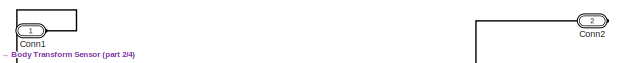
[diagram: sensing subsystem  - part 1/4, top left region]
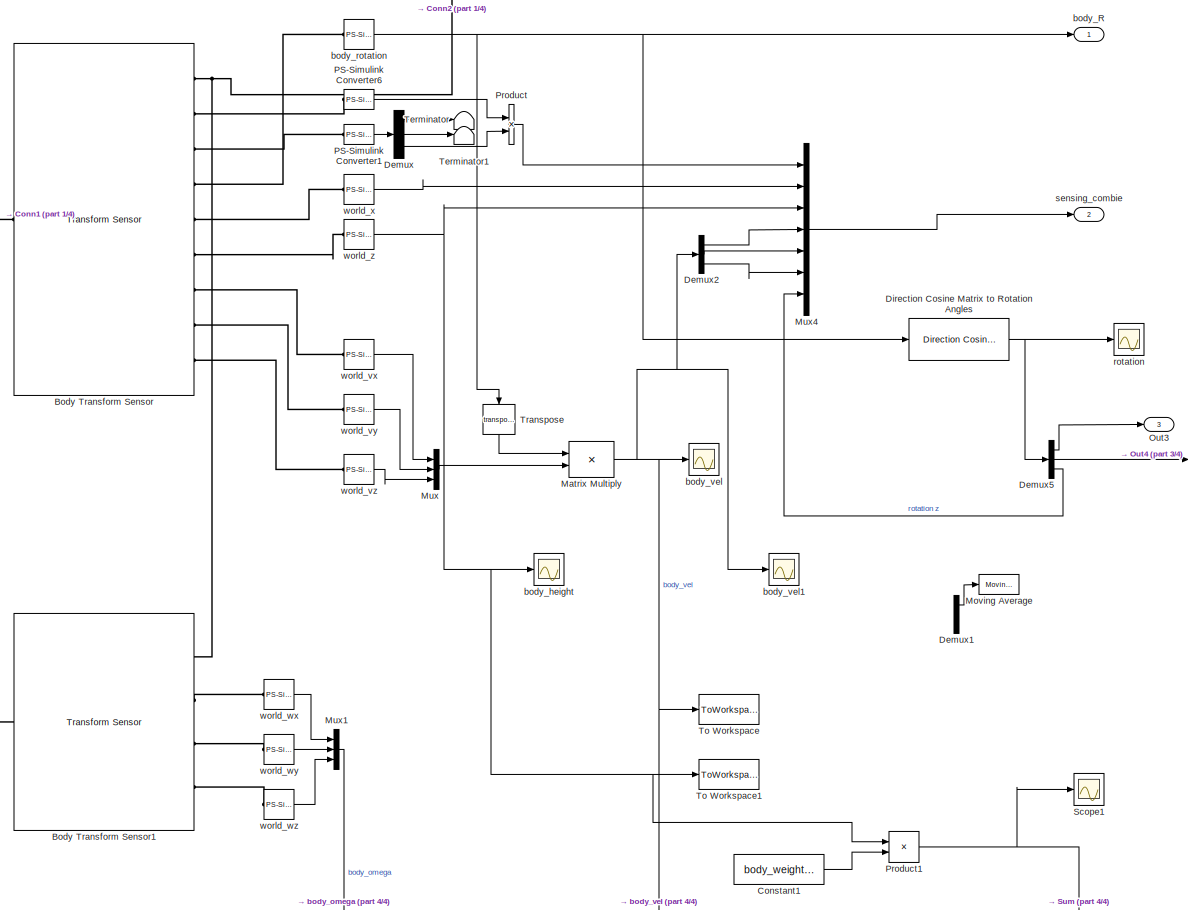
[diagram: sensing subsystem  - part 2/4, full width, middle band]
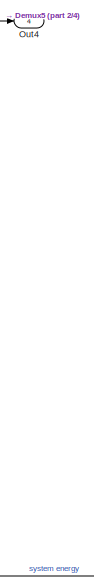
[diagram: sensing subsystem  - part 3/4, bottom right region]
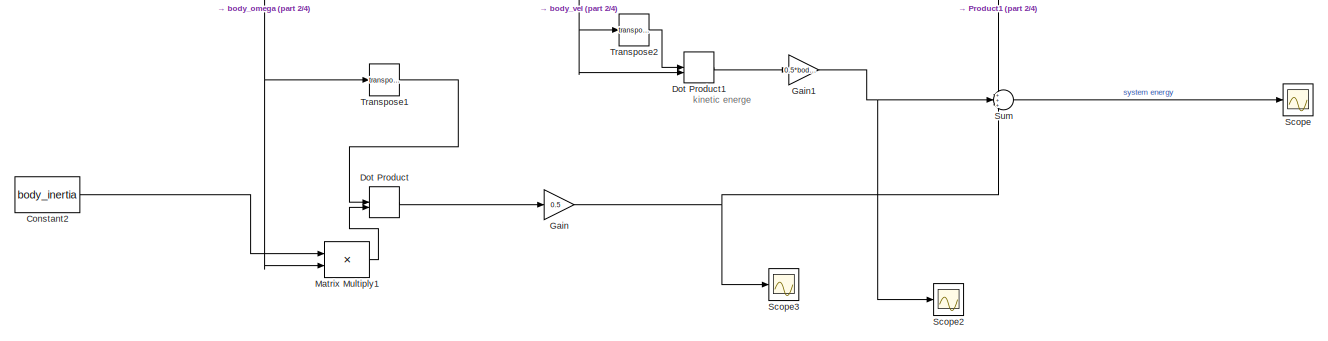
[diagram: sensing subsystem  - part 4/4, full width, bottom band]
BLOCK [SubSystem] sensing subsystem 
  Ports = [0, 4, 0, 0, 0, 1, 1]
  RequestExecContextInheritance = off
BLOCK [Reference] sensing subsystem /Body Transform Sensor  REF=sm_lib/Frames and
Transforms/Transform
Sensor
  Ports = [0, 0, 0, 0, 0, 1, 9]
  SourceBlock = sm_lib/Frames and\nTransforms/Transform\nSensor
  SourceProductBaseCode = MS
  SourceProductName = Simscape Multibody
  SourceType = Transform\nSensor
BLOCK [Reference] sensing subsystem /Body Transform Sensor1  REF=sm_lib/Frames and
Transforms/Transform
Sensor
  Ports = [0, 0, 0, 0, 0, 1, 4]
  SourceBlock = sm_lib/Frames and\nTransforms/Transform\nSensor
  SourceProductBaseCode = MS
  SourceProductName = Simscape Multibody
  SourceType = Transform\nSensor
BLOCK [PMIOPort] sensing subsystem /Conn1
  Side = Left
BLOCK [PMIOPort] sensing subsystem /Conn2
  Port = 2
  Side = Right
BLOCK [Constant] sensing subsystem /Constant1
  Value = body_weight*9.8
BLOCK [Constant] sensing subsystem /Constant2
  Value = body_inertia
BLOCK [Demux] sensing subsystem /Demux
  DisplayOption = bar
  Outputs = 3
  Ports = [1, 3]
BLOCK [Demux] sensing subsystem /Demux1
  Commented = on
  DisplayOption = bar
  Outputs = 3
  Ports = [1, 3]
BLOCK [Demux] sensing subsystem /Demux2
  DisplayOption = bar
  Outputs = 3
  Ports = [1, 3]
BLOCK [Demux] sensing subsystem /Demux5
  DisplayOption = bar
  Outputs = 3
  Ports = [1, 3]
BLOCK [Reference] sensing subsystem /Direction Cosine Matrix to Rotation Angles  REF=sharedtransform/Direction Cosine Matrix
to Rotation Angles
  AttributesFormatString = Rotation Order: %<rotationOrder>
  Ports = [1, 1]
  SourceBlock = sharedtransform/Direction Cosine Matrix\nto Rotation Angles
  SourceProductBaseCode = AE
  SourceProductName = Aerospace Blockset
  SourceType = DCM2Ang
BLOCK [DotProduct] sensing subsystem /Dot Product
  OutDataTypeStr = Inherit: Inherit via internal rule
BLOCK [DotProduct] sensing subsystem /Dot Product1
  OutDataTypeStr = Inherit: Inherit via internal rule
BLOCK [Gain] sensing subsystem /Gain
  Gain = 0.5
  OutDataTypeStr = Inherit: Inherit via internal rule
  ParamDataTypeStr = Inherit: Inherit via internal rule
  SaturateOnIntegerOverflow = off
BLOCK [Gain] sensing subsystem /Gain1
  Gain = 0.5*body_weight
  OutDataTypeStr = Inherit: Inherit via internal rule
  ParamDataTypeStr = Inherit: Inherit via internal rule
  SaturateOnIntegerOverflow = off
BLOCK [Product] sensing subsystem /Matrix Multiply
  InputSameDT = off
  Multiplication = Matrix(*)
  OutDataTypeStr = Inherit: Inherit via internal rule
  Ports = [2, 1]
  RndMeth = Floor
  SaturateOnIntegerOverflow = off
BLOCK [Product] sensing subsystem /Matrix Multiply1
  InputSameDT = off
  Multiplication = Matrix(*)
  OutDataTypeStr = Inherit: Inherit via internal rule
  Ports = [2, 1]
  RndMeth = Floor
  SaturateOnIntegerOverflow = off
BLOCK [Reference] sensing subsystem /Moving Average  REF=dspstat3/Moving
Average
  Commented = on
  Ports = [1, 1]
  SourceBlock = dspstat3/Moving\nAverage
  SourceProductBaseCode = DS
  SourceProductName = DSP System Toolbox
  SourceType = dsp.simulink.MovingAverage
BLOCK [Mux] sensing subsystem /Mux
  DisplayOption = bar
  Inputs = 3
  Ports = [3, 1]
BLOCK [Mux] sensing subsystem /Mux1
  DisplayOption = bar
  Inputs = 3
  Ports = [3, 1]
BLOCK [Mux] sensing subsystem /Mux4
  DisplayOption = bar
  Inputs = 7
  Ports = [7, 1]
BLOCK [Outport] sensing subsystem /Out3
  IconDisplay = Port number
  Port = 3
BLOCK [Outport] sensing subsystem /Out4
  IconDisplay = Port number
  Port = 4
BLOCK [Reference] sensing subsystem /PS-Simulink Converter1  REF=nesl_utility/PS-Simulink
Converter
  Ports = [0, 1, 0, 0, 0, 1]
  SourceBlock = nesl_utility/PS-Simulink\nConverter
  SourceProductBaseCode = SS
  SourceProductName = Simscape
  SourceType = PS-Simulink\nConverter
BLOCK [Reference] sensing subsystem /PS-Simulink Converter6  REF=nesl_utility/PS-Simulink
Converter
  Ports = [0, 1, 0, 0, 0, 1]
  SourceBlock = nesl_utility/PS-Simulink\nConverter
  SourceProductBaseCode = SS
  SourceProductName = Simscape
  SourceType = PS-Simulink\nConverter
BLOCK [Product] sensing subsystem /Product
  InputSameDT = off
  OutDataTypeStr = Inherit: Inherit via internal rule
  Ports = [2, 1]
  RndMeth = Floor
  SaturateOnIntegerOverflow = off
BLOCK [Product] sensing subsystem /Product1
  InputSameDT = off
  OutDataTypeStr = Inherit: Inherit via internal rule
  Ports = [2, 1]
  RndMeth = Floor
  SaturateOnIntegerOverflow = off
BLOCK [Scope] sensing subsystem /Scope
  Floating = off
  NumInputPorts = 1
  Ports = [1]
  ScopeSpecificationString = Simulink.scopes.TimeScopeBlockCfg('CurrentConfiguration', extmgr.ConfigurationSet(extmgr.Configuration('Core','General UI',true),extmgr.Configuration('Core','Source UI',true),extmgr.Configuration('Sources','WiredSimulink',true,'DataLoggingVariableName','ScopeData1'),extmgr.Configuration('Visuals','Time Domain',true,'SerializedDisplays',{struct('MinYLimReal','54.6817','MaxYLimReal','75.98026','YLab...<+1467ch>
BLOCK [Scope] sensing subsystem /Scope1
  Floating = off
  NumInputPorts = 1
  Ports = [1]
  ScopeSpecificationString = Simulink.scopes.TimeScopeBlockCfg('CurrentConfiguration', extmgr.ConfigurationSet(extmgr.Configuration('Core','General UI',true),extmgr.Configuration('Core','Source UI',true),extmgr.Configuration('Sources','WiredSimulink',true,'DataLoggingVariableName','ScopeData2'),extmgr.Configuration('Visuals','Time Domain',true,'SerializedDisplays',{struct('MinYLimReal','54.66467','MaxYLimReal','74.20057','YLa...<+1373ch>
BLOCK [Scope] sensing subsystem /Scope2
  Floating = off
  NumInputPorts = 1
  Ports = [1]
  ScopeSpecificationString = Simulink.scopes.TimeScopeBlockCfg('CurrentConfiguration', extmgr.ConfigurationSet(extmgr.Configuration('Core','General UI',true),extmgr.Configuration('Core','Source UI',true),extmgr.Configuration('Sources','WiredSimulink',true,'DataLoggingVariableName','ScopeData3'),extmgr.Configuration('Visuals','Time Domain',true,'SerializedDisplays',{struct('MinYLimReal','-0.55413','MaxYLimReal','4.98718','YLab...<+1389ch>
BLOCK [Scope] sensing subsystem /Scope3
  Floating = off
  NumInputPorts = 1
  Ports = [1]
  ScopeSpecificationString = Simulink.scopes.TimeScopeBlockCfg('CurrentConfiguration', extmgr.ConfigurationSet(extmgr.Configuration('Core','General UI',true),extmgr.Configuration('Core','Source UI',true),extmgr.Configuration('Sources','WiredSimulink',true,'DataLoggingVariableName','ScopeData4'),extmgr.Configuration('Visuals','Time Domain',true,'SerializedDisplays',{struct('MinYLimReal','-0.14983','MaxYLimReal','1.3485','YLabe...<+1439ch>
BLOCK [Sum] sensing subsystem /Sum
  IconShape = round
  InputSameDT = off
  Inputs = +++
  OutDataTypeStr = Inherit: Inherit via internal rule
  Ports = [3, 1]
  SaturateOnIntegerOverflow = off
BLOCK [Terminator] sensing subsystem /Terminator
BLOCK [Terminator] sensing subsystem /Terminator1
BLOCK [ToWorkspace] sensing subsystem /To Workspace
  FixptAsFi = on
  MaxDataPoints = inf
  Ports = [1]
  SampleTime = -1
  Save2DSignal = 3-D array (concatenate along third dimension)
  VariableName = body_vel
BLOCK [ToWorkspace] sensing subsystem /To Workspace1
  FixptAsFi = on
  MaxDataPoints = inf
  Ports = [1]
  SampleTime = -1
  Save2DSignal = 3-D array (concatenate along third dimension)
  VariableName = body_height
BLOCK [Math] sensing subsystem /Transpose
  Operator = transpose
  Ports = [1, 1]
BLOCK [Math] sensing subsystem /Transpose1
  Operator = transpose
  Ports = [1, 1]
BLOCK [Math] sensing subsystem /Transpose2
  Operator = transpose
  Ports = [1, 1]
BLOCK [Outport] sensing subsystem /body_R
  IconDisplay = Port number
BLOCK [Scope] sensing subsystem /body_height 
  Floating = off
  NumInputPorts = 1
  Ports = [1]
  ScopeSpecificationString = Simulink.scopes.TimeScopeBlockCfg('CurrentConfiguration', extmgr.ConfigurationSet(extmgr.Configuration('Core','General UI',true),extmgr.Configuration('Core','Source UI',true),extmgr.Configuration('Sources','WiredSimulink',true,'DataLoggingVariableName','ScopeData6'),extmgr.Configuration('Visuals','Time Domain',true,'SerializedDisplays',{struct('MinYLimReal','0.14238','MaxYLimReal','0.50624','YLabe...<+1487ch>
BLOCK [Reference] sensing subsystem /body_rotation  REF=nesl_utility/PS-Simulink
Converter
  Ports = [0, 1, 0, 0, 0, 1]
  SourceBlock = nesl_utility/PS-Simulink\nConverter
  SourceProductBaseCode = SS
  SourceProductName = Simscape
  SourceType = PS-Simulink\nConverter
BLOCK [Scope] sensing subsystem /body_vel
  Floating = off
  NumInputPorts = 1
  Ports = [1]
  ScopeSpecificationString = Simulink.scopes.TimeScopeBlockCfg('CurrentConfiguration', extmgr.ConfigurationSet(extmgr.Configuration('Core','General UI',true),extmgr.Configuration('Core','Source UI',true),extmgr.Configuration('Sources','WiredSimulink',true,'DataLoggingVariableName','ScopeData2'),extmgr.Configuration('Visuals','Time Domain',true,'SerializedDisplays',{struct('MinYLimReal','-0.66827','MaxYLimReal','0.81073','YLab...<+1531ch>
BLOCK [Scope] sensing subsystem /body_vel1
  Floating = off
  NumInputPorts = 1
  Ports = [1]
  ScopeSpecificationString = Simulink.scopes.TimeScopeBlockCfg('CurrentConfiguration', extmgr.ConfigurationSet(extmgr.Configuration('Core','General UI',true),extmgr.Configuration('Core','Source UI',true),extmgr.Configuration('Sources','WiredSimulink',true,'DataLoggingVariableName','ScopeData3'),extmgr.Configuration('Visuals','Time Domain',true,'SerializedDisplays',{struct('MinYLimReal','-37114.87267','MaxYLimReal','27031.0491...<+1499ch>
BLOCK [Scope] sensing subsystem /rotation 
  Floating = off
  NumInputPorts = 1
  Ports = [1]
  ScopeSpecificationString = Simulink.scopes.TimeScopeBlockCfg('CurrentConfiguration', extmgr.ConfigurationSet(extmgr.Configuration('Core','General UI',true),extmgr.Configuration('Core','Source UI',true),extmgr.Configuration('Sources','WiredSimulink',true,'DataLoggingVariableName','ScopeData4'),extmgr.Configuration('Visuals','Time Domain',true,'SerializedDisplays',{struct('MinYLimReal','-0.11912','MaxYLimReal','0.27224','YLab...<+1574ch>
BLOCK [Outport] sensing subsystem /sensing_combie
  IconDisplay = Port number
  Port = 2
BLOCK [Reference] sensing subsystem /world_vx  REF=nesl_utility/PS-Simulink
Converter
  Ports = [0, 1, 0, 0, 0, 1]
  SourceBlock = nesl_utility/PS-Simulink\nConverter
  SourceProductBaseCode = SS
  SourceProductName = Simscape
  SourceType = PS-Simulink\nConverter
BLOCK [Reference] sensing subsystem /world_vy  REF=nesl_utility/PS-Simulink
Converter
  Ports = [0, 1, 0, 0, 0, 1]
  SourceBlock = nesl_utility/PS-Simulink\nConverter
  SourceProductBaseCode = SS
  SourceProductName = Simscape
  SourceType = PS-Simulink\nConverter
BLOCK [Reference] sensing subsystem /world_vz  REF=nesl_utility/PS-Simulink
Converter
  Ports = [0, 1, 0, 0, 0, 1]
  SourceBlock = nesl_utility/PS-Simulink\nConverter
  SourceProductBaseCode = SS
  SourceProductName = Simscape
  SourceType = PS-Simulink\nConverter
BLOCK [Reference] sensing subsystem /world_wx  REF=nesl_utility/PS-Simulink
Converter
  Ports = [0, 1, 0, 0, 0, 1]
  SourceBlock = nesl_utility/PS-Simulink\nConverter
  SourceProductBaseCode = SS
  SourceProductName = Simscape
  SourceType = PS-Simulink\nConverter
BLOCK [Reference] sensing subsystem /world_wy  REF=nesl_utility/PS-Simulink
Converter
  Ports = [0, 1, 0, 0, 0, 1]
  SourceBlock = nesl_utility/PS-Simulink\nConverter
  SourceProductBaseCode = SS
  SourceProductName = Simscape
  SourceType = PS-Simulink\nConverter
BLOCK [Reference] sensing subsystem /world_wz  REF=nesl_utility/PS-Simulink
Converter
  Ports = [0, 1, 0, 0, 0, 1]
  SourceBlock = nesl_utility/PS-Simulink\nConverter
  SourceProductBaseCode = SS
  SourceProductName = Simscape
  SourceType = PS-Simulink\nConverter
BLOCK [Reference] sensing subsystem /world_x  REF=nesl_utility/PS-Simulink
Converter
  Ports = [0, 1, 0, 0, 0, 1]
  SourceBlock = nesl_utility/PS-Simulink\nConverter
  SourceProductBaseCode = SS
  SourceProductName = Simscape
  SourceType = PS-Simulink\nConverter
BLOCK [Reference] sensing subsystem /world_z  REF=nesl_utility/PS-Simulink
Converter
  Ports = [0, 1, 0, 0, 0, 1]
  SourceBlock = nesl_utility/PS-Simulink\nConverter
  SourceProductBaseCode = SS
  SourceProductName = Simscape
  SourceType = PS-Simulink\nConverter
BLOCK [SubSystem] transform
  Ports = [0, 0, 0, 0, 0, 1, 1]
  RequestExecContextInheritance = off
BLOCK [Reference] transform/6-DOF Joint  REF=sm_lib/Joints/6-DOF Joint
  Ports = [0, 0, 0, 0, 0, 1, 1]
  SourceBlock = sm_lib/Joints/6-DOF Joint
  SourceProductBaseCode = MS
  SourceProductName = Simscape Multibody
  SourceType = 6-DOF Joint
BLOCK [PMIOPort] transform/Conn1
  Side = Right
BLOCK [PMIOPort] transform/Conn2
  Port = 2
  Side = Left
BLOCK [Reference] transform/Rigid Transform  REF=sm_lib/Frames and
Transforms/Rigid
Transform
  Ports = [0, 0, 0, 0, 0, 1, 1]
  SourceBlock = sm_lib/Frames and\nTransforms/Rigid\nTransform
  SourceProductBaseCode = MS
  SourceProductName = Simscape Multibody
  SourceType = Rigid\nTransform
BLOCK [Reference] transform/Rigid Transform1  REF=sm_lib/Frames and
Transforms/Rigid
Transform
  Ports = [0, 0, 0, 0, 0, 1, 1]
  SourceBlock = sm_lib/Frames and\nTransforms/Rigid\nTransform
  SourceProductBaseCode = MS
  SourceProductName = Simscape Multibody
  SourceType = Rigid\nTransform
ANNOTATION (root): 16.2kg
ANNOTATION (root): https://www.mathworks.com/help/simulink/ug/parameter-arguments-in-matlab-function-block-functions.html
ANNOTATION Contact_fl: state 4 166.31ms
ANNOTATION Contact_fl: 这是一个蛋疼的处理，因为地面现在厚度是0.4，为了和碰撞的block要求匹配，所以碰撞是相对于这个地面的中心来算的。而检测高度的时候就要把这个厚度减掉 但是Transform sensor要检测的是球和地面的高度差
ANNOTATION Contact_fr: state 4 166.31ms
ANNOTATION Contact_fr: 这是一个蛋疼的处理，因为地面现在厚度是0.4，为了和碰撞的block要求匹配，所以碰撞是相对于这个地面的中心来算的。而检测高度的时候就要把这个厚度减掉 但是Transform sensor要检测的是球和地面的高度差
ANNOTATION Contact_rl: 这是一个蛋疼的处理，因为地面现在厚度是0.4，为了和碰撞的block要求匹配，所以碰撞是相对于这个地面的中心来算的。而检测高度的时候就要把这个厚度减掉 但是Transform sensor要检测的是球和地面的高度差
ANNOTATION Contact_rr: state 4 166.31ms
ANNOTATION Contact_rr: 这是一个蛋疼的处理，因为地面现在厚度是0.4，为了和碰撞的block要求匹配，所以碰撞是相对于这个地面的中心来算的。而检测高度的时候就要把这个厚度减掉 但是Transform sensor要检测的是球和地面的高度差
ANNOTATION Controller: if ctrl_state = 1 push if ctrl_state =4 stop simulation
ANNOTATION Controller: state transition detection
ANNOTATION leg_fl: 0.1796kg
ANNOTATION leg_fl: 0.2112kg
ANNOTATION leg_fl: 0.2264kg
ANNOTATION leg_fl: 0.2640kg
ANNOTATION leg_fl: shoulder和knee总是要有控制的 upper不一定
ANNOTATION leg_fr: shoulder和knee总是要有控制的 upper不一定
ANNOTATION leg_rl: shoulder和knee总是要有控制的 upper不一定
ANNOTATION leg_rr: shoulder和knee总是要有控制的 upper不一定
ANNOTATION sensing subsystem : kinetic energe
LINE Bus Creator:1 -> Controller:5
LINE Constant1:1 -> Switch:3
LINE Constant:1 -> Switch:1
LINE Contact_fl/Bus Selector:1 -> Contact_fl/force:1
LINE Contact_fl/Bus Selector:2 -> Contact_fl/Terminator:1
LINE Contact_fl/Bus Selector:3 -> Contact_fl/force:2
NET Contact_fl/Compare To Constant:1 -> Contact_fl/State Scope:1, Contact_fl/state:1
NET Contact_fl/PSConv4:1 -> Contact_fl/Compare To Constant:1, Contact_fl/ZScope:1
LINE Contact_fl/Sphere to Plane Force1:1 -> Contact_fl/Bus Selector:1
LINE Contact_fl:1 -> Bus Creator:1
LINE Contact_fr/Bus Selector:1 -> Contact_fr/force:1
LINE Contact_fr/Bus Selector:2 -> Contact_fr/Terminator:1
LINE Contact_fr/Bus Selector:3 -> Contact_fr/force:2
NET Contact_fr/Compare To Constant:1 -> Contact_fr/State Scope:1, Contact_fr/state:1
NET Contact_fr/PSConv4:1 -> Contact_fr/Compare To Constant:1, Contact_fr/ZScope:1
LINE Contact_fr/Sphere to Plane Force1:1 -> Contact_fr/Bus Selector:1
LINE Contact_fr:1 -> Bus Creator:2
LINE Contact_rl/Bus Selector:1 -> Contact_rl/force:1
LINE Contact_rl/Bus Selector:2 -> Contact_rl/Terminator:1
LINE Contact_rl/Bus Selector:3 -> Contact_rl/force:2
NET Contact_rl/Compare To Constant:1 -> Contact_rl/State Scope:1, Contact_rl/state:1
NET Contact_rl/PSConv4:1 -> Contact_rl/Compare To Constant:1, Contact_rl/ZScope:1
LINE Contact_rl/Sphere to Plane Force1:1 -> Contact_rl/Bus Selector:1
LINE Contact_rl:1 -> Bus Creator:3
LINE Contact_rr/Bus Selector:1 -> Contact_rr/force:1
LINE Contact_rr/Bus Selector:2 -> Contact_rr/Terminator:1
LINE Contact_rr/Bus Selector:3 -> Contact_rr/force:2
NET Contact_rr/Compare To Constant:1 -> Contact_rr/State Scope:1, Contact_rr/state:1
NET Contact_rr/PSConv4:1 -> Contact_rr/Compare To Constant:1, Contact_rr/ZScope:1
LINE Contact_rr/Sphere to Plane Force1:1 -> Contact_rr/Bus Selector:1
LINE Contact_rr:1 -> Bus Creator:4
LINE Controller/Constant1:1 -> Controller/Relational Operator1:2
LINE Controller/Constant:1 -> Controller/Relational Operator:2
LINE Controller/In1:1 -> Controller/QuadCtrl:1
LINE Controller/In2:1 -> Controller/QuadCtrl:2
LINE Controller/In3:1 -> Controller/QuadCtrl:3
LINE Controller/In4:1 -> Controller/QuadCtrl:4
LINE Controller/In5:1 -> Controller/QuadCtrl:5
LINE Controller/In6:1 -> Controller/QuadCtrl:6
LINE Controller/In7:1 -> Controller/QuadCtrl:7
LINE Controller/Memory:1 -> Controller/Sum:2
LINE Controller/QuadCtrl:1 -> Controller/Out1:1
LINE Controller/QuadCtrl:2 -> Controller/Out2:1
LINE Controller/QuadCtrl:3 -> Controller/Out3:1
LINE Controller/QuadCtrl:4 -> Controller/Out4:1
NET Controller/QuadCtrl:5 -> Controller/Memory:1, Controller/Relational Operator1:1, Controller/Relational Operator:1, Controller/Scope:1, Controller/Sum:1
LINE Controller/QuadCtrl:6 -> Controller/Scope1:1
LINE Controller/Relational Operator1:1 -> Controller/push enable :1
LINE Controller/Relational Operator:1 -> Controller/Stop Simulation:1
LINE Controller/Sum:1 -> Controller/Scope:2
LINE Controller/Timer/Compare To Constant:1 -> Controller/Timer/Integrator:2
LINE Controller/Timer/Constant4:1 -> Controller/Timer/Integrator:1
NET Controller/Timer/Integrator:1 -> Controller/Timer/Memory:1, Controller/Timer/Out1:1
LINE Controller/Timer/Memory:1 -> Controller/Timer/Compare To Constant:1
NET Controller/Timer:1 -> Controller/QuadCtrl:8, Controller/TimerScope:1
LINE Controller:1 -> Demux1:1
LINE Controller:2 -> Demux2:1
LINE Controller:3 -> Demux3:1
LINE Controller:4 -> Demux4:1
LINE Controller:5 -> Switch:2
LINE Demux1:1 -> leg_fl:1
LINE Demux1:2 -> leg_fl:2
LINE Demux1:3 -> leg_fl:3
LINE Demux1:4 -> leg_fl:4
LINE Demux2:1 -> leg_fr:1
LINE Demux2:2 -> leg_fr:2
LINE Demux2:3 -> leg_fr:3
LINE Demux2:4 -> leg_fr:4
LINE Demux3:1 -> leg_rl:1
LINE Demux3:2 -> leg_rl:2
LINE Demux3:3 -> leg_rl:3
LINE Demux3:4 -> leg_rl:4
LINE Demux4:1 -> leg_rr:1
LINE Demux4:2 -> leg_rr:2
LINE Demux4:3 -> leg_rr:3
LINE Demux4:4 -> leg_rr:4
LINE Mux1:1 -> Controller:2
LINE Mux2:1 -> Controller:3
LINE Mux3:1 -> Controller:4
LINE Mux:1 -> Controller:1
LINE Switch:1 -> Simulink-PS Converter:1
LINE leg_fl/PSConv1:1 -> leg_fl/curr_upper :1
LINE leg_fl/PSConv2:1 -> leg_fl/curr_knee:1
LINE leg_fl/PSConv:1 -> leg_fl/curr_shoulder:1
LINE leg_fl/has_knee_ctrl :1 -> leg_fl/k_joint_ctrl:2
LINE leg_fl/has_shoulder_ctrl:1 -> leg_fl/s_joint_ctrl :2
LINE leg_fl/has_upper_ctrl:1 -> leg_fl/u_joint_ctrl :2
LINE leg_fl/k_joint_ctrl/PID Controller3:1 -> leg_fl/k_joint_ctrl/Product:2
LINE leg_fl/k_joint_ctrl/PID Controller:1 -> leg_fl/k_joint_ctrl/Sum6:1
LINE leg_fl/k_joint_ctrl/PSConv3:1 -> leg_fl/k_joint_ctrl/Sum1:2
LINE leg_fl/k_joint_ctrl/PSConv4:1 -> leg_fl/k_joint_ctrl/Sum6:2
LINE leg_fl/k_joint_ctrl/Product:1 -> leg_fl/k_joint_ctrl/SPConv:1
LINE leg_fl/k_joint_ctrl/Sum1:1 -> leg_fl/k_joint_ctrl/PID Controller:1
LINE leg_fl/k_joint_ctrl/Sum6:1 -> leg_fl/k_joint_ctrl/PID Controller3:1
LINE leg_fl/k_joint_ctrl/has_ctrl:1 -> leg_fl/k_joint_ctrl/Product:1
LINE leg_fl/k_joint_ctrl/tgt_angle:1 -> leg_fl/k_joint_ctrl/Sum1:1
LINE leg_fl/knee_torque:1 -> leg_fl/Scope:3
LINE leg_fl/s_joint_ctrl /PID Controller3:1 -> leg_fl/s_joint_ctrl /Product:2
LINE leg_fl/s_joint_ctrl /PID Controller:1 -> leg_fl/s_joint_ctrl /Sum6:1
LINE leg_fl/s_joint_ctrl /PSConv3:1 -> leg_fl/s_joint_ctrl /Sum1:2
LINE leg_fl/s_joint_ctrl /PSConv4:1 -> leg_fl/s_joint_ctrl /Sum6:2
LINE leg_fl/s_joint_ctrl /Product:1 -> leg_fl/s_joint_ctrl /SPConv:1
LINE leg_fl/s_joint_ctrl /Sum1:1 -> leg_fl/s_joint_ctrl /PID Controller:1
LINE leg_fl/s_joint_ctrl /Sum6:1 -> leg_fl/s_joint_ctrl /PID Controller3:1
LINE leg_fl/s_joint_ctrl /has_ctrl:1 -> leg_fl/s_joint_ctrl /Product:1
LINE leg_fl/s_joint_ctrl /tgt_angle:1 -> leg_fl/s_joint_ctrl /Sum1:1
LINE leg_fl/shoulder_torque:1 -> leg_fl/Scope:1
LINE leg_fl/tgt_knee:1 -> leg_fl/k_joint_ctrl:1
LINE leg_fl/tgt_shoulder:1 -> leg_fl/s_joint_ctrl :1
LINE leg_fl/tgt_upper:1 -> leg_fl/u_joint_ctrl :1
LINE leg_fl/u_joint_ctrl /PID Controller3:1 -> leg_fl/u_joint_ctrl /Product:2
LINE leg_fl/u_joint_ctrl /PID Controller:1 -> leg_fl/u_joint_ctrl /Sum6:1
LINE leg_fl/u_joint_ctrl /PSConv3:1 -> leg_fl/u_joint_ctrl /Sum1:2
LINE leg_fl/u_joint_ctrl /PSConv4:1 -> leg_fl/u_joint_ctrl /Sum6:2
LINE leg_fl/u_joint_ctrl /Product:1 -> leg_fl/u_joint_ctrl /SPConv:1
LINE leg_fl/u_joint_ctrl /Sum1:1 -> leg_fl/u_joint_ctrl /PID Controller:1
LINE leg_fl/u_joint_ctrl /Sum6:1 -> leg_fl/u_joint_ctrl /PID Controller3:1
LINE leg_fl/u_joint_ctrl /has_ctrl:1 -> leg_fl/u_joint_ctrl /Product:1
LINE leg_fl/u_joint_ctrl /tgt_angle:1 -> leg_fl/u_joint_ctrl /Sum1:1
LINE leg_fl/upper_torque:1 -> leg_fl/Scope:2
LINE leg_fl:1 -> Mux:1
LINE leg_fl:2 -> Mux:2
LINE leg_fl:3 -> Mux:3
LINE leg_fr/PSConv1:1 -> leg_fr/curr_upper :1
LINE leg_fr/PSConv2:1 -> leg_fr/curr_knee:1
LINE leg_fr/PSConv:1 -> leg_fr/curr_shoulder:1
LINE leg_fr/has_knee_ctrl :1 -> leg_fr/k_joint_ctrl:2
LINE leg_fr/has_shoulder_ctrl:1 -> leg_fr/s_joint_ctrl :2
LINE leg_fr/has_upper_ctrl:1 -> leg_fr/u_joint_ctrl :2
LINE leg_fr/k_joint_ctrl/PID Controller3:1 -> leg_fr/k_joint_ctrl/Product:2
LINE leg_fr/k_joint_ctrl/PID Controller:1 -> leg_fr/k_joint_ctrl/Sum6:1
LINE leg_fr/k_joint_ctrl/PSConv3:1 -> leg_fr/k_joint_ctrl/Sum1:2
LINE leg_fr/k_joint_ctrl/PSConv4:1 -> leg_fr/k_joint_ctrl/Sum6:2
LINE leg_fr/k_joint_ctrl/Product:1 -> leg_fr/k_joint_ctrl/SPConv:1
LINE leg_fr/k_joint_ctrl/Sum1:1 -> leg_fr/k_joint_ctrl/PID Controller:1
LINE leg_fr/k_joint_ctrl/Sum6:1 -> leg_fr/k_joint_ctrl/PID Controller3:1
LINE leg_fr/k_joint_ctrl/has_ctrl:1 -> leg_fr/k_joint_ctrl/Product:1
LINE leg_fr/k_joint_ctrl/tgt_angle:1 -> leg_fr/k_joint_ctrl/Sum1:1
LINE leg_fr/knee_torque:1 -> leg_fr/Scope:3
LINE leg_fr/s_joint_ctrl /PID Controller3:1 -> leg_fr/s_joint_ctrl /Product:2
LINE leg_fr/s_joint_ctrl /PID Controller:1 -> leg_fr/s_joint_ctrl /Sum6:1
LINE leg_fr/s_joint_ctrl /PSConv3:1 -> leg_fr/s_joint_ctrl /Sum1:2
LINE leg_fr/s_joint_ctrl /PSConv4:1 -> leg_fr/s_joint_ctrl /Sum6:2
LINE leg_fr/s_joint_ctrl /Product:1 -> leg_fr/s_joint_ctrl /SPConv:1
LINE leg_fr/s_joint_ctrl /Sum1:1 -> leg_fr/s_joint_ctrl /PID Controller:1
LINE leg_fr/s_joint_ctrl /Sum6:1 -> leg_fr/s_joint_ctrl /PID Controller3:1
LINE leg_fr/s_joint_ctrl /has_ctrl:1 -> leg_fr/s_joint_ctrl /Product:1
LINE leg_fr/s_joint_ctrl /tgt_angle:1 -> leg_fr/s_joint_ctrl /Sum1:1
LINE leg_fr/shoulder_torque:1 -> leg_fr/Scope:1
LINE leg_fr/tgt_knee:1 -> leg_fr/k_joint_ctrl:1
LINE leg_fr/tgt_shoulder:1 -> leg_fr/s_joint_ctrl :1
LINE leg_fr/tgt_upper:1 -> leg_fr/u_joint_ctrl :1
LINE leg_fr/u_joint_ctrl /PID Controller3:1 -> leg_fr/u_joint_ctrl /Product:2
LINE leg_fr/u_joint_ctrl /PID Controller:1 -> leg_fr/u_joint_ctrl /Sum6:1
LINE leg_fr/u_joint_ctrl /PSConv3:1 -> leg_fr/u_joint_ctrl /Sum1:2
LINE leg_fr/u_joint_ctrl /PSConv4:1 -> leg_fr/u_joint_ctrl /Sum6:2
LINE leg_fr/u_joint_ctrl /Product:1 -> leg_fr/u_joint_ctrl /SPConv:1
LINE leg_fr/u_joint_ctrl /Sum1:1 -> leg_fr/u_joint_ctrl /PID Controller:1
LINE leg_fr/u_joint_ctrl /Sum6:1 -> leg_fr/u_joint_ctrl /PID Controller3:1
LINE leg_fr/u_joint_ctrl /has_ctrl:1 -> leg_fr/u_joint_ctrl /Product:1
LINE leg_fr/u_joint_ctrl /tgt_angle:1 -> leg_fr/u_joint_ctrl /Sum1:1
LINE leg_fr/upper_torque:1 -> leg_fr/Scope:2
LINE leg_fr:1 -> Mux1:1
LINE leg_fr:2 -> Mux1:2
LINE leg_fr:3 -> Mux1:3
LINE leg_rl/PSConv1:1 -> leg_rl/curr_upper :1
LINE leg_rl/PSConv2:1 -> leg_rl/curr_knee:1
LINE leg_rl/PSConv:1 -> leg_rl/curr_shoulder:1
LINE leg_rl/has_knee_ctrl :1 -> leg_rl/k_joint_ctrl:2
LINE leg_rl/has_shoulder_ctrl:1 -> leg_rl/s_joint_ctrl :2
LINE leg_rl/has_upper_ctrl:1 -> leg_rl/u_joint_ctrl :2
LINE leg_rl/k_joint_ctrl/PID Controller3:1 -> leg_rl/k_joint_ctrl/Product:2
LINE leg_rl/k_joint_ctrl/PID Controller:1 -> leg_rl/k_joint_ctrl/Sum6:1
LINE leg_rl/k_joint_ctrl/PSConv3:1 -> leg_rl/k_joint_ctrl/Sum1:2
LINE leg_rl/k_joint_ctrl/PSConv4:1 -> leg_rl/k_joint_ctrl/Sum6:2
LINE leg_rl/k_joint_ctrl/Product:1 -> leg_rl/k_joint_ctrl/SPConv:1
LINE leg_rl/k_joint_ctrl/Sum1:1 -> leg_rl/k_joint_ctrl/PID Controller:1
LINE leg_rl/k_joint_ctrl/Sum6:1 -> leg_rl/k_joint_ctrl/PID Controller3:1
LINE leg_rl/k_joint_ctrl/has_ctrl:1 -> leg_rl/k_joint_ctrl/Product:1
LINE leg_rl/k_joint_ctrl/tgt_angle:1 -> leg_rl/k_joint_ctrl/Sum1:1
LINE leg_rl/knee_torque:1 -> leg_rl/Scope:3
LINE leg_rl/s_joint_ctrl /PID Controller3:1 -> leg_rl/s_joint_ctrl /Product:2
LINE leg_rl/s_joint_ctrl /PID Controller:1 -> leg_rl/s_joint_ctrl /Sum6:1
LINE leg_rl/s_joint_ctrl /PSConv3:1 -> leg_rl/s_joint_ctrl /Sum1:2
LINE leg_rl/s_joint_ctrl /PSConv4:1 -> leg_rl/s_joint_ctrl /Sum6:2
LINE leg_rl/s_joint_ctrl /Product:1 -> leg_rl/s_joint_ctrl /SPConv:1
LINE leg_rl/s_joint_ctrl /Sum1:1 -> leg_rl/s_joint_ctrl /PID Controller:1
LINE leg_rl/s_joint_ctrl /Sum6:1 -> leg_rl/s_joint_ctrl /PID Controller3:1
LINE leg_rl/s_joint_ctrl /has_ctrl:1 -> leg_rl/s_joint_ctrl /Product:1
LINE leg_rl/s_joint_ctrl /tgt_angle:1 -> leg_rl/s_joint_ctrl /Sum1:1
LINE leg_rl/shoulder_torque:1 -> leg_rl/Scope:1
LINE leg_rl/tgt_knee:1 -> leg_rl/k_joint_ctrl:1
LINE leg_rl/tgt_shoulder:1 -> leg_rl/s_joint_ctrl :1
LINE leg_rl/tgt_upper:1 -> leg_rl/u_joint_ctrl :1
LINE leg_rl/u_joint_ctrl /PID Controller3:1 -> leg_rl/u_joint_ctrl /Product:2
LINE leg_rl/u_joint_ctrl /PID Controller:1 -> leg_rl/u_joint_ctrl /Sum6:1
LINE leg_rl/u_joint_ctrl /PSConv3:1 -> leg_rl/u_joint_ctrl /Sum1:2
LINE leg_rl/u_joint_ctrl /PSConv4:1 -> leg_rl/u_joint_ctrl /Sum6:2
LINE leg_rl/u_joint_ctrl /Product:1 -> leg_rl/u_joint_ctrl /SPConv:1
LINE leg_rl/u_joint_ctrl /Sum1:1 -> leg_rl/u_joint_ctrl /PID Controller:1
LINE leg_rl/u_joint_ctrl /Sum6:1 -> leg_rl/u_joint_ctrl /PID Controller3:1
LINE leg_rl/u_joint_ctrl /has_ctrl:1 -> leg_rl/u_joint_ctrl /Product:1
LINE leg_rl/u_joint_ctrl /tgt_angle:1 -> leg_rl/u_joint_ctrl /Sum1:1
LINE leg_rl/upper_torque:1 -> leg_rl/Scope:2
LINE leg_rl:1 -> Mux2:1
LINE leg_rl:2 -> Mux2:2
LINE leg_rl:3 -> Mux2:3
LINE leg_rr/PSConv1:1 -> leg_rr/curr_upper :1
LINE leg_rr/PSConv2:1 -> leg_rr/curr_knee:1
LINE leg_rr/PSConv:1 -> leg_rr/curr_shoulder:1
LINE leg_rr/has_knee_ctrl :1 -> leg_rr/k_joint_ctrl:2
LINE leg_rr/has_shoulder_ctrl:1 -> leg_rr/s_joint_ctrl :2
LINE leg_rr/has_upper_ctrl:1 -> leg_rr/u_joint_ctrl :2
LINE leg_rr/k_joint_ctrl/PID Controller3:1 -> leg_rr/k_joint_ctrl/Product:2
LINE leg_rr/k_joint_ctrl/PID Controller:1 -> leg_rr/k_joint_ctrl/Sum6:1
LINE leg_rr/k_joint_ctrl/PSConv3:1 -> leg_rr/k_joint_ctrl/Sum1:2
LINE leg_rr/k_joint_ctrl/PSConv4:1 -> leg_rr/k_joint_ctrl/Sum6:2
LINE leg_rr/k_joint_ctrl/Product:1 -> leg_rr/k_joint_ctrl/SPConv:1
LINE leg_rr/k_joint_ctrl/Sum1:1 -> leg_rr/k_joint_ctrl/PID Controller:1
LINE leg_rr/k_joint_ctrl/Sum6:1 -> leg_rr/k_joint_ctrl/PID Controller3:1
LINE leg_rr/k_joint_ctrl/has_ctrl:1 -> leg_rr/k_joint_ctrl/Product:1
LINE leg_rr/k_joint_ctrl/tgt_angle:1 -> leg_rr/k_joint_ctrl/Sum1:1
LINE leg_rr/knee_torque:1 -> leg_rr/Scope:3
LINE leg_rr/s_joint_ctrl /PID Controller3:1 -> leg_rr/s_joint_ctrl /Product:2
LINE leg_rr/s_joint_ctrl /PID Controller:1 -> leg_rr/s_joint_ctrl /Sum6:1
LINE leg_rr/s_joint_ctrl /PSConv3:1 -> leg_rr/s_joint_ctrl /Sum1:2
LINE leg_rr/s_joint_ctrl /PSConv4:1 -> leg_rr/s_joint_ctrl /Sum6:2
LINE leg_rr/s_joint_ctrl /Product:1 -> leg_rr/s_joint_ctrl /SPConv:1
LINE leg_rr/s_joint_ctrl /Sum1:1 -> leg_rr/s_joint_ctrl /PID Controller:1
LINE leg_rr/s_joint_ctrl /Sum6:1 -> leg_rr/s_joint_ctrl /PID Controller3:1
LINE leg_rr/s_joint_ctrl /has_ctrl:1 -> leg_rr/s_joint_ctrl /Product:1
LINE leg_rr/s_joint_ctrl /tgt_angle:1 -> leg_rr/s_joint_ctrl /Sum1:1
LINE leg_rr/shoulder_torque:1 -> leg_rr/Scope:1
LINE leg_rr/tgt_knee:1 -> leg_rr/k_joint_ctrl:1
LINE leg_rr/tgt_shoulder:1 -> leg_rr/s_joint_ctrl :1
LINE leg_rr/tgt_upper:1 -> leg_rr/u_joint_ctrl :1
LINE leg_rr/u_joint_ctrl /PID Controller3:1 -> leg_rr/u_joint_ctrl /Product:2
LINE leg_rr/u_joint_ctrl /PID Controller:1 -> leg_rr/u_joint_ctrl /Sum6:1
LINE leg_rr/u_joint_ctrl /PSConv3:1 -> leg_rr/u_joint_ctrl /Sum1:2
LINE leg_rr/u_joint_ctrl /PSConv4:1 -> leg_rr/u_joint_ctrl /Sum6:2
LINE leg_rr/u_joint_ctrl /Product:1 -> leg_rr/u_joint_ctrl /SPConv:1
LINE leg_rr/u_joint_ctrl /Sum1:1 -> leg_rr/u_joint_ctrl /PID Controller:1
LINE leg_rr/u_joint_ctrl /Sum6:1 -> leg_rr/u_joint_ctrl /PID Controller3:1
LINE leg_rr/u_joint_ctrl /has_ctrl:1 -> leg_rr/u_joint_ctrl /Product:1
LINE leg_rr/u_joint_ctrl /tgt_angle:1 -> leg_rr/u_joint_ctrl /Sum1:1
LINE leg_rr/upper_torque:1 -> leg_rr/Scope:2
LINE leg_rr:1 -> Mux3:1
LINE leg_rr:2 -> Mux3:2
LINE leg_rr:3 -> Mux3:3
LINE sensing subsystem /Constant1:1 -> sensing subsystem /Product1:2
LINE sensing subsystem /Constant2:1 -> sensing subsystem /Matrix Multiply1:1
LINE sensing subsystem /Demux1:1 -> sensing subsystem /Moving Average:1
LINE sensing subsystem /Demux2:1 -> sensing subsystem /Mux4:4
LINE sensing subsystem /Demux2:2 -> sensing subsystem /Mux4:5
LINE sensing subsystem /Demux2:3 -> sensing subsystem /Mux4:6
LINE sensing subsystem /Demux5:1 -> sensing subsystem /Out3:1
LINE sensing subsystem /Demux5:2 -> sensing subsystem /Out4:1
LINE sensing subsystem /Demux5:3 -> sensing subsystem /Mux4:7
LINE sensing subsystem /Demux:1 -> sensing subsystem /Terminator:1
LINE sensing subsystem /Demux:2 -> sensing subsystem /Terminator1:1
LINE sensing subsystem /Demux:3 -> sensing subsystem /Product:2
NET sensing subsystem /Direction Cosine Matrix to Rotation Angles:1 -> sensing subsystem /Demux5:1, sensing subsystem /rotation :1
LINE sensing subsystem /Dot Product1:1 -> sensing subsystem /Gain1:1
LINE sensing subsystem /Dot Product:1 -> sensing subsystem /Gain:1
NET sensing subsystem /Gain1:1 -> sensing subsystem /Scope2:1, sensing subsystem /Sum:2
NET sensing subsystem /Gain:1 -> sensing subsystem /Scope3:1, sensing subsystem /Sum:3
LINE sensing subsystem /Matrix Multiply1:1 -> sensing subsystem /Dot Product:2
NET sensing subsystem /Matrix Multiply:1 -> sensing subsystem /Demux2:1, sensing subsystem /Dot Product1:2, sensing subsystem /To Workspace:1, sensing subsystem /Transpose2:1, sensing subsystem /body_vel1:1, sensing subsystem /body_vel:1
NET sensing subsystem /Mux1:1 -> sensing subsystem /Matrix Multiply1:2, sensing subsystem /Transpose1:1
LINE sensing subsystem /Mux4:1 -> sensing subsystem /sensing_combie:1
LINE sensing subsystem /Mux:1 -> sensing subsystem /Matrix Multiply:2
LINE sensing subsystem /PS-Simulink Converter1:1 -> sensing subsystem /Demux:1
LINE sensing subsystem /PS-Simulink Converter6:1 -> sensing subsystem /Product:1
NET sensing subsystem /Product1:1 -> sensing subsystem /Scope1:1, sensing subsystem /Sum:1
LINE sensing subsystem /Product:1 -> sensing subsystem /Mux4:1
LINE sensing subsystem /Sum:1 -> sensing subsystem /Scope:1
LINE sensing subsystem /Transpose1:1 -> sensing subsystem /Dot Product:1
LINE sensing subsystem /Transpose2:1 -> sensing subsystem /Dot Product1:1
LINE sensing subsystem /Transpose:1 -> sensing subsystem /Matrix Multiply:1
NET sensing subsystem /body_rotation:1 -> sensing subsystem /Direction Cosine Matrix to Rotation Angles:1, sensing subsystem /Transpose:1, sensing subsystem /body_R:1
LINE sensing subsystem /world_vx:1 -> sensing subsystem /Mux:1
LINE sensing subsystem /world_vy:1 -> sensing subsystem /Mux:2
LINE sensing subsystem /world_vz:1 -> sensing subsystem /Mux:3
LINE sensing subsystem /world_wx:1 -> sensing subsystem /Mux1:1
LINE sensing subsystem /world_wy:1 -> sensing subsystem /Mux1:2
LINE sensing subsystem /world_wz:1 -> sensing subsystem /Mux1:3
LINE sensing subsystem /world_x:1 -> sensing subsystem /Mux4:2
NET sensing subsystem /world_z:1 -> sensing subsystem /Mux4:3, sensing subsystem /Product1:1, sensing subsystem /To Workspace1:1, sensing subsystem /body_height :1
LINE sensing subsystem :1 -> Controller:6
LINE sensing subsystem :2 -> Controller:7
PLINE Contact_fl/PSConv4:LConn1 -- Contact_fl/Transform Sensor:RConn2
PNET net1: Contact_fl/PlanB:RConn1 -- Contact_fl/Sphere to Plane Force1:RConn1 -- Contact_fl/Transform Sensor:LConn1
PNET net2: Contact_fl/SphF:RConn1 -- Contact_fl/Sphere to Plane Force1:LConn1 -- Contact_fl/Transform Sensor:RConn1
PNET net3: Contact_fl:LConn1 -- Contact_fr:LConn1 -- Contact_rl:LConn1 -- Contact_rr:LConn1 -- ground:RConn1 -- sensing subsystem :LConn1 -- transform:RConn1
PLINE Contact_fl:RConn1 -- leg_fl:RConn1
PLINE Contact_fr/PSConv4:LConn1 -- Contact_fr/Transform Sensor:RConn2
PNET net4: Contact_fr/PlanB:RConn1 -- Contact_fr/Sphere to Plane Force1:RConn1 -- Contact_fr/Transform Sensor:LConn1
PNET net5: Contact_fr/SphF:RConn1 -- Contact_fr/Sphere to Plane Force1:LConn1 -- Contact_fr/Transform Sensor:RConn1
PLINE Contact_fr:RConn1 -- leg_fr:RConn1
PLINE Contact_rl/PSConv4:LConn1 -- Contact_rl/Transform Sensor:RConn2
PNET net6: Contact_rl/PlanB:RConn1 -- Contact_rl/Sphere to Plane Force1:RConn1 -- Contact_rl/Transform Sensor:LConn1
PNET net7: Contact_rl/SphF:RConn1 -- Contact_rl/Sphere to Plane Force1:LConn1 -- Contact_rl/Transform Sensor:RConn1
PLINE Contact_rl:RConn1 -- leg_rl:RConn1
PLINE Contact_rr/PSConv4:LConn1 -- Contact_rr/Transform Sensor:RConn2
PNET net8: Contact_rr/PlanB:RConn1 -- Contact_rr/Sphere to Plane Force1:RConn1 -- Contact_rr/Transform Sensor:LConn1
PNET net9: Contact_rr/SphF:RConn1 -- Contact_rr/Sphere to Plane Force1:LConn1 -- Contact_rr/Transform Sensor:RConn1
PLINE Contact_rr:RConn1 -- leg_rr:RConn1
PLINE External Force and Torque:LConn1 -- Simulink-PS Converter:RConn1
PLINE External Force and Torque:RConn1 -- body:LConn1
PNET net10: body:RConn1 -- body_to_fl:LConn1 -- body_to_fr:LConn1 -- body_to_rl:LConn1 -- body_to_rr:LConn1 -- sensing subsystem :RConn1 -- transform:LConn1
PLINE body_to_fl:RConn1 -- leg_fl:LConn1
PLINE body_to_fr:RConn1 -- leg_fr:LConn1
PLINE body_to_rl:RConn1 -- leg_rl:LConn1
PLINE body_to_rr:RConn1 -- leg_rr:LConn1
PNET net11: ground/Mechanism Configuration:RConn1 -- ground/Rigid Transform:LConn1 -- ground/Solver Configuration:RConn1 -- ground/World Frame:RConn1 -- ground/ground:RConn1
PLINE ground/Rigid Transform:RConn1 -- ground/port1:RConn1
PNET net12: leg_fl/Ball:LConn1 -- leg_fl/contact_point:RConn1 -- leg_fl/lower_leg:RConn1
PLINE leg_fl/k_joint_ctrl/PSConv3:LConn1 -- leg_fl/k_joint_ctrl/curr_angle:RConn1
PLINE leg_fl/k_joint_ctrl/PSConv4:LConn1 -- leg_fl/k_joint_ctrl/curr_omega:RConn1
PLINE leg_fl/k_joint_ctrl/SPConv:RConn1 -- leg_fl/k_joint_ctrl/torque:RConn1
PLINE leg_fl/k_joint_ctrl:LConn1 -- leg_fl/knee_joint:RConn2
PLINE leg_fl/k_joint_ctrl:LConn2 -- leg_fl/knee_joint:RConn3
PLINE leg_fl/k_joint_ctrl:RConn1 -- leg_fl/knee_joint:LConn2
PLINE leg_fl/knee_joint:LConn1 -- leg_fl/upper_leg:RConn1
PLINE leg_fl/knee_joint:RConn1 -- leg_fl/lower_leg:LConn1
PLINE leg_fl/knee_joint:RConn4 -- leg_fl/knee_torque:LConn1
PLINE leg_fl/s_joint_ctrl /PSConv3:LConn1 -- leg_fl/s_joint_ctrl /curr_angle:RConn1
PLINE leg_fl/s_joint_ctrl /PSConv4:LConn1 -- leg_fl/s_joint_ctrl /curr_omega:RConn1
PLINE leg_fl/s_joint_ctrl /SPConv:RConn1 -- leg_fl/s_joint_ctrl /torque:RConn1
PLINE leg_fl/s_joint_ctrl :LConn1 -- leg_fl/shoulder_joint:RConn2
PLINE leg_fl/s_joint_ctrl :LConn2 -- leg_fl/shoulder_joint:RConn3
PLINE leg_fl/s_joint_ctrl :RConn1 -- leg_fl/shoulder_joint:LConn2
PLINE leg_fl/shoulder:LConn1 -- leg_fl/shoulder_joint:RConn1
PLINE leg_fl/shoulder:RConn1 -- leg_fl/upper_joint:LConn1
PLINE leg_fl/shoulder_joint:LConn1 -- leg_fl/to_body:RConn1
PLINE leg_fl/shoulder_joint:RConn4 -- leg_fl/shoulder_torque:LConn1
PLINE leg_fl/u_joint_ctrl /PSConv3:LConn1 -- leg_fl/u_joint_ctrl /curr_angle:RConn1
PLINE leg_fl/u_joint_ctrl /PSConv4:LConn1 -- leg_fl/u_joint_ctrl /curr_omega:RConn1
PLINE leg_fl/u_joint_ctrl /SPConv:RConn1 -- leg_fl/u_joint_ctrl /torque:RConn1
PLINE leg_fl/u_joint_ctrl :LConn1 -- leg_fl/upper_joint:RConn2
PLINE leg_fl/u_joint_ctrl :LConn2 -- leg_fl/upper_joint:RConn3
PLINE leg_fl/u_joint_ctrl :RConn1 -- leg_fl/upper_joint:LConn2
PLINE leg_fl/upper_joint:RConn1 -- leg_fl/upper_leg:LConn1
PLINE leg_fl/upper_joint:RConn4 -- leg_fl/upper_torque:LConn1
PNET net13: leg_fr/Ball:LConn1 -- leg_fr/contact_point:RConn1 -- leg_fr/lower_leg:RConn1
PLINE leg_fr/k_joint_ctrl/PSConv3:LConn1 -- leg_fr/k_joint_ctrl/curr_angle:RConn1
PLINE leg_fr/k_joint_ctrl/PSConv4:LConn1 -- leg_fr/k_joint_ctrl/curr_omega:RConn1
PLINE leg_fr/k_joint_ctrl/SPConv:RConn1 -- leg_fr/k_joint_ctrl/torque:RConn1
PLINE leg_fr/k_joint_ctrl:LConn1 -- leg_fr/knee_joint:RConn2
PLINE leg_fr/k_joint_ctrl:LConn2 -- leg_fr/knee_joint:RConn3
PLINE leg_fr/k_joint_ctrl:RConn1 -- leg_fr/knee_joint:LConn2
PLINE leg_fr/knee_joint:LConn1 -- leg_fr/upper_leg:RConn1
PLINE leg_fr/knee_joint:RConn1 -- leg_fr/lower_leg:LConn1
PLINE leg_fr/s_joint_ctrl /PSConv3:LConn1 -- leg_fr/s_joint_ctrl /curr_angle:RConn1
PLINE leg_fr/s_joint_ctrl /PSConv4:LConn1 -- leg_fr/s_joint_ctrl /curr_omega:RConn1
PLINE leg_fr/s_joint_ctrl /SPConv:RConn1 -- leg_fr/s_joint_ctrl /torque:RConn1
PLINE leg_fr/s_joint_ctrl :LConn1 -- leg_fr/shoulder_joint:RConn2
PLINE leg_fr/s_joint_ctrl :LConn2 -- leg_fr/shoulder_joint:RConn3
PLINE leg_fr/s_joint_ctrl :RConn1 -- leg_fr/shoulder_joint:LConn2
PLINE leg_fr/shoulder:LConn1 -- leg_fr/shoulder_joint:RConn1
PLINE leg_fr/shoulder:RConn1 -- leg_fr/upper_joint:LConn1
PLINE leg_fr/shoulder_joint:LConn1 -- leg_fr/to_body:RConn1
PLINE leg_fr/u_joint_ctrl /PSConv3:LConn1 -- leg_fr/u_joint_ctrl /curr_angle:RConn1
PLINE leg_fr/u_joint_ctrl /PSConv4:LConn1 -- leg_fr/u_joint_ctrl /curr_omega:RConn1
PLINE leg_fr/u_joint_ctrl /SPConv:RConn1 -- leg_fr/u_joint_ctrl /torque:RConn1
PLINE leg_fr/u_joint_ctrl :LConn1 -- leg_fr/upper_joint:RConn2
PLINE leg_fr/u_joint_ctrl :LConn2 -- leg_fr/upper_joint:RConn3
PLINE leg_fr/u_joint_ctrl :RConn1 -- leg_fr/upper_joint:LConn2
PLINE leg_fr/upper_joint:RConn1 -- leg_fr/upper_leg:LConn1
PNET net14: leg_rl/Ball:LConn1 -- leg_rl/contact_point:RConn1 -- leg_rl/lower_leg:RConn1
PLINE leg_rl/k_joint_ctrl/PSConv3:LConn1 -- leg_rl/k_joint_ctrl/curr_angle:RConn1
PLINE leg_rl/k_joint_ctrl/PSConv4:LConn1 -- leg_rl/k_joint_ctrl/curr_omega:RConn1
PLINE leg_rl/k_joint_ctrl/SPConv:RConn1 -- leg_rl/k_joint_ctrl/torque:RConn1
PLINE leg_rl/k_joint_ctrl:LConn1 -- leg_rl/knee_joint:RConn2
PLINE leg_rl/k_joint_ctrl:LConn2 -- leg_rl/knee_joint:RConn3
PLINE leg_rl/k_joint_ctrl:RConn1 -- leg_rl/knee_joint:LConn2
PLINE leg_rl/knee_joint:LConn1 -- leg_rl/upper_leg:RConn1
PLINE leg_rl/knee_joint:RConn1 -- leg_rl/lower_leg:LConn1
PLINE leg_rl/s_joint_ctrl /PSConv3:LConn1 -- leg_rl/s_joint_ctrl /curr_angle:RConn1
PLINE leg_rl/s_joint_ctrl /PSConv4:LConn1 -- leg_rl/s_joint_ctrl /curr_omega:RConn1
PLINE leg_rl/s_joint_ctrl /SPConv:RConn1 -- leg_rl/s_joint_ctrl /torque:RConn1
PLINE leg_rl/s_joint_ctrl :LConn1 -- leg_rl/shoulder_joint:RConn2
PLINE leg_rl/s_joint_ctrl :LConn2 -- leg_rl/shoulder_joint:RConn3
PLINE leg_rl/s_joint_ctrl :RConn1 -- leg_rl/shoulder_joint:LConn2
PLINE leg_rl/shoulder:LConn1 -- leg_rl/shoulder_joint:RConn1
PLINE leg_rl/shoulder:RConn1 -- leg_rl/upper_joint:LConn1
PLINE leg_rl/shoulder_joint:LConn1 -- leg_rl/to_body:RConn1
PLINE leg_rl/u_joint_ctrl /PSConv3:LConn1 -- leg_rl/u_joint_ctrl /curr_angle:RConn1
PLINE leg_rl/u_joint_ctrl /PSConv4:LConn1 -- leg_rl/u_joint_ctrl /curr_omega:RConn1
PLINE leg_rl/u_joint_ctrl /SPConv:RConn1 -- leg_rl/u_joint_ctrl /torque:RConn1
PLINE leg_rl/u_joint_ctrl :LConn1 -- leg_rl/upper_joint:RConn2
PLINE leg_rl/u_joint_ctrl :LConn2 -- leg_rl/upper_joint:RConn3
PLINE leg_rl/u_joint_ctrl :RConn1 -- leg_rl/upper_joint:LConn2
PLINE leg_rl/upper_joint:RConn1 -- leg_rl/upper_leg:LConn1
PNET net15: leg_rr/Ball:LConn1 -- leg_rr/contact_point:RConn1 -- leg_rr/lower_leg:RConn1
PLINE leg_rr/k_joint_ctrl/PSConv3:LConn1 -- leg_rr/k_joint_ctrl/curr_angle:RConn1
PLINE leg_rr/k_joint_ctrl/PSConv4:LConn1 -- leg_rr/k_joint_ctrl/curr_omega:RConn1
PLINE leg_rr/k_joint_ctrl/SPConv:RConn1 -- leg_rr/k_joint_ctrl/torque:RConn1
PLINE leg_rr/k_joint_ctrl:LConn1 -- leg_rr/knee_joint:RConn2
PLINE leg_rr/k_joint_ctrl:LConn2 -- leg_rr/knee_joint:RConn3
PLINE leg_rr/k_joint_ctrl:RConn1 -- leg_rr/knee_joint:LConn2
PLINE leg_rr/knee_joint:LConn1 -- leg_rr/upper_leg:RConn1
PLINE leg_rr/knee_joint:RConn1 -- leg_rr/lower_leg:LConn1
PLINE leg_rr/s_joint_ctrl /PSConv3:LConn1 -- leg_rr/s_joint_ctrl /curr_angle:RConn1
PLINE leg_rr/s_joint_ctrl /PSConv4:LConn1 -- leg_rr/s_joint_ctrl /curr_omega:RConn1
PLINE leg_rr/s_joint_ctrl /SPConv:RConn1 -- leg_rr/s_joint_ctrl /torque:RConn1
PLINE leg_rr/s_joint_ctrl :LConn1 -- leg_rr/shoulder_joint:RConn2
PLINE leg_rr/s_joint_ctrl :LConn2 -- leg_rr/shoulder_joint:RConn3
PLINE leg_rr/s_joint_ctrl :RConn1 -- leg_rr/shoulder_joint:LConn2
PLINE leg_rr/shoulder:LConn1 -- leg_rr/shoulder_joint:RConn1
PLINE leg_rr/shoulder:RConn1 -- leg_rr/upper_joint:LConn1
PLINE leg_rr/shoulder_joint:LConn1 -- leg_rr/to_body:RConn1
PLINE leg_rr/u_joint_ctrl /PSConv3:LConn1 -- leg_rr/u_joint_ctrl /curr_angle:RConn1
PLINE leg_rr/u_joint_ctrl /PSConv4:LConn1 -- leg_rr/u_joint_ctrl /curr_omega:RConn1
PLINE leg_rr/u_joint_ctrl /SPConv:RConn1 -- leg_rr/u_joint_ctrl /torque:RConn1
PLINE leg_rr/u_joint_ctrl :LConn1 -- leg_rr/upper_joint:RConn2
PLINE leg_rr/u_joint_ctrl :LConn2 -- leg_rr/upper_joint:RConn3
PLINE leg_rr/u_joint_ctrl :RConn1 -- leg_rr/upper_joint:LConn2
PLINE leg_rr/upper_joint:RConn1 -- leg_rr/upper_leg:LConn1
PNET net16: sensing subsystem /Body Transform Sensor1:LConn1 -- sensing subsystem /Body Transform Sensor:LConn1 -- sensing subsystem /Conn1:RConn1
PNET net17: sensing subsystem /Body Transform Sensor1:RConn1 -- sensing subsystem /Body Transform Sensor:RConn1 -- sensing subsystem /Conn2:RConn1
PLINE sensing subsystem /Body Transform Sensor1:RConn2 -- sensing subsystem /world_wx:LConn1
PLINE sensing subsystem /Body Transform Sensor1:RConn3 -- sensing subsystem /world_wy:LConn1
PLINE sensing subsystem /Body Transform Sensor1:RConn4 -- sensing subsystem /world_wz:LConn1
PLINE sensing subsystem /Body Transform Sensor:RConn2 -- sensing subsystem /PS-Simulink Converter6:LConn1
PLINE sensing subsystem /Body Transform Sensor:RConn3 -- sensing subsystem /PS-Simulink Converter1:LConn1
PLINE sensing subsystem /Body Transform Sensor:RConn4 -- sensing subsystem /body_rotation:LConn1
PLINE sensing subsystem /Body Transform Sensor:RConn5 -- sensing subsystem /world_x:LConn1
PLINE sensing subsystem /Body Transform Sensor:RConn6 -- sensing subsystem /world_z:LConn1
PLINE sensing subsystem /Body Transform Sensor:RConn7 -- sensing subsystem /world_vx:LConn1
PLINE sensing subsystem /Body Transform Sensor:RConn8 -- sensing subsystem /world_vy:LConn1
PLINE sensing subsystem /Body Transform Sensor:RConn9 -- sensing subsystem /world_vz:LConn1
PLINE transform/6-DOF Joint:LConn1 -- transform/Rigid Transform1:RConn1
PLINE transform/6-DOF Joint:RConn1 -- transform/Rigid Transform:LConn1
PLINE transform/Conn1:RConn1 -- transform/Rigid Transform1:LConn1
PLINE transform/Conn2:RConn1 -- transform/Rigid Transform:RConn1
note: NET lines group one-source signal fan-out (src -> all destinations, sorted); 1:1 wires keep LINE; PNET lines group multi-terminal physical nets as a canonical sorted terminal list (undirected conserving connections); 2-terminal nets keep the pairwise PLINE form
CHART Controller/QuadCtrl states=1 transitions=1
  STATE_LABEL 'eML_blk_kernel()'
  STATE_LABEL 'SCRIPT:\nfunction [tgt_ctrl_fl,tgt_ctrl_fr,tgt_ctrl_rl,tgt_ctrl_rr, ctrl_state, debug] = ...\n    controller(fl_ang, fr_ang, rl_ang, rr_ang, ...\n    contact_state, body_R, sensing_info, t, body, planner)\n\n%%%% This controller code and its model\n%%%% (quad_new_leg_raibert_strategy_return_map) is used to generate return\n%%%% map for the quad simulation.\n%%%% The controller works like this: a force pus...<+3608ch>'
